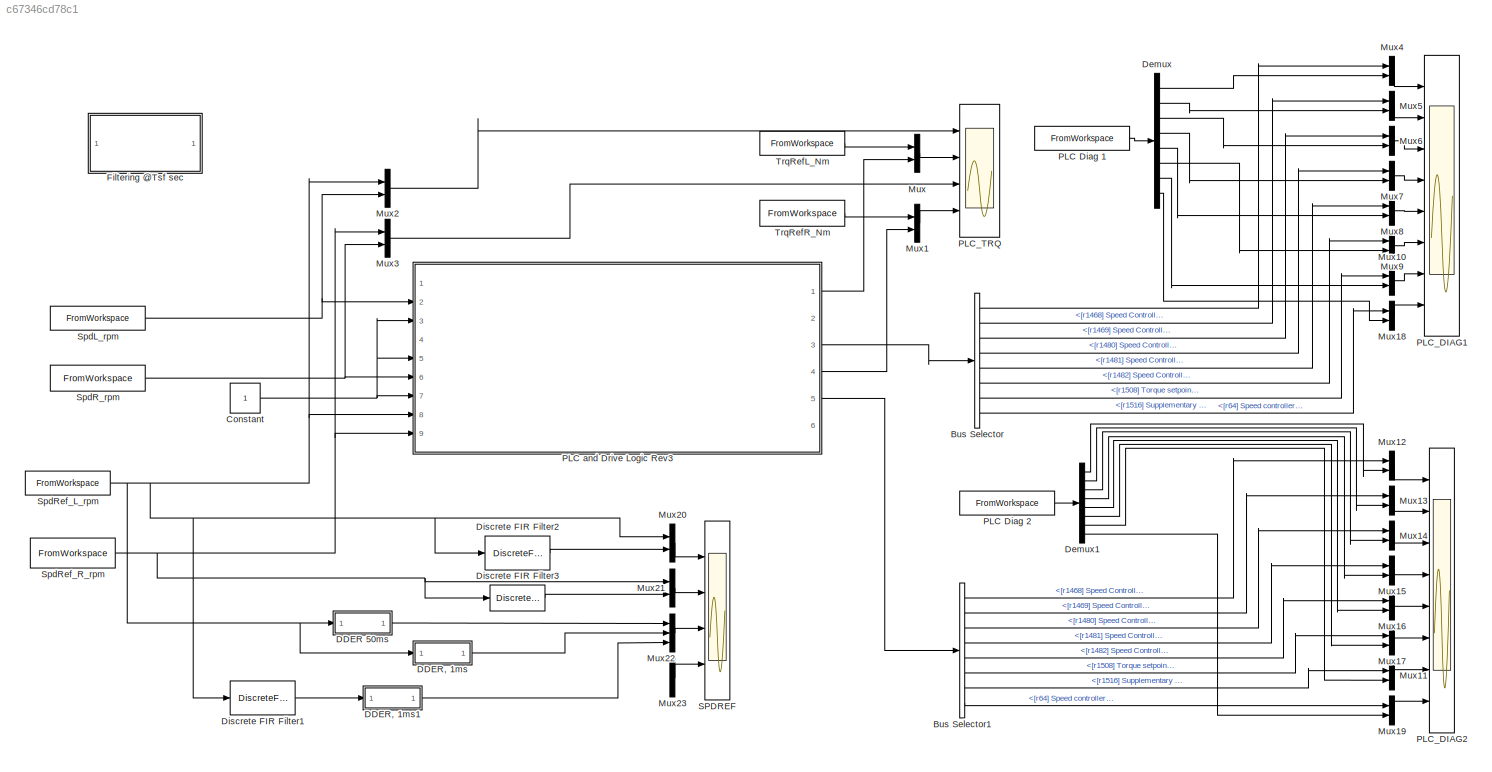
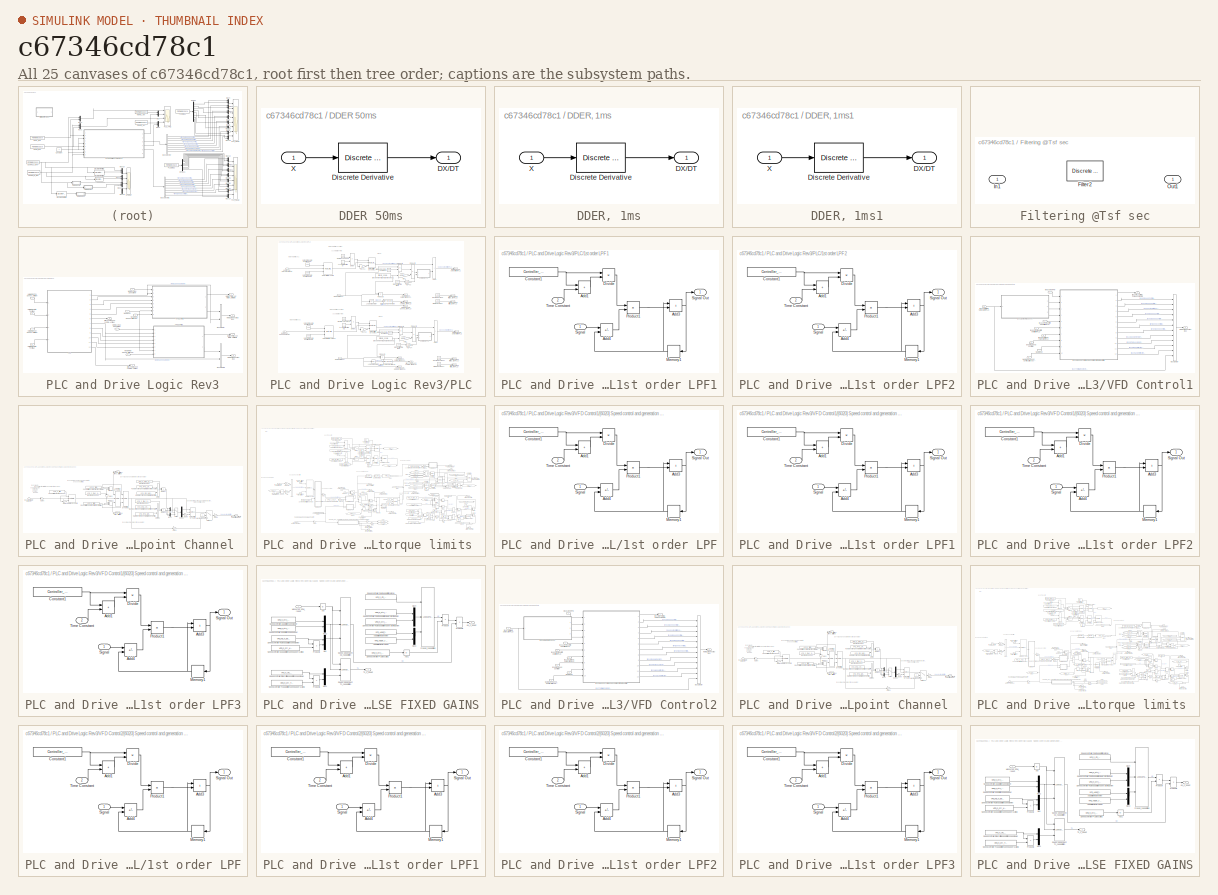
[diagram: thumbnail index - all 25 canvases of the model, root first then tree order]
MODEL slx_c67346cd78c1
KIND model
CONFIG AbsTol = auto
CONFIG EnableMultiTasking = off
CONFIG FixedStep = auto
CONFIG MaxStep = auto
CONFIG MinStep = auto
CONFIG RelTol = 1e-3
CONFIG SampleTimeConstraint = Unconstrained
CONFIG SolverName = VariableStepAuto
CONFIG StartTime = 0.0
CONFIG StopTime = t_stop
BLOCK [BusSelector] Bus Selector
  OutputSignals = signal1.[r1468] Speed Controller P-gain effective,signal1.[r1469] Speed Controller integral time effective,signal1.[r1480] Speed Controller PI torque Output,signal1.[r1481] Speed Controller P torque Output,signal1.[r1482] Speed Controller I torque Output,signal1.[r1508] Torque setpoint before supplementary torque,signal1.[r1516] Supplementary torque and acceleration torque,signal1.[r64] Speed cont...<+23ch>
  Ports = [1, 8]
BLOCK [BusSelector] Bus Selector1
  OutputSignals = signal1.[r1468] Speed Controller P-gain effective,signal1.[r1469] Speed Controller integral time effective,signal1.[r1480] Speed Controller PI torque Output,signal1.[r1481] Speed Controller P torque Output,signal1.[r1482] Speed Controller I torque Output,signal1.[r1508] Torque setpoint before supplementary torque,signal1.[r1516] Supplementary torque and acceleration torque,signal1.[r64] Speed cont...<+23ch>
  Ports = [1, 8]
BLOCK [Constant] Constant
BLOCK [SubSystem] DDER 50ms
  Ports = [1, 1]
  RequestExecContextInheritance = off
  SystemSampleTime = 0.05
  TreatAsAtomicUnit = on
BLOCK [Outport] DDER 50ms/DX//DT
BLOCK [Reference] DDER 50ms/Discrete Derivative  REF=simulink/Discrete/Discrete Derivative
  Ports = [1, 1]
  SourceBlock = simulink/Discrete/Discrete Derivative
  SourceProductBaseCode = SL
  SourceType = Discrete Derivative
BLOCK [Inport] DDER 50ms/X
BLOCK [SubSystem] DDER, 1ms
  Ports = [1, 1]
  RequestExecContextInheritance = off
  SystemSampleTime = 0.001
  TreatAsAtomicUnit = on
BLOCK [Outport] DDER, 1ms/DX//DT
BLOCK [Reference] DDER, 1ms/Discrete Derivative  REF=simulink/Discrete/Discrete Derivative
  Ports = [1, 1]
  SourceBlock = simulink/Discrete/Discrete Derivative
  SourceProductBaseCode = SL
  SourceType = Discrete Derivative
BLOCK [Inport] DDER, 1ms/X
BLOCK [SubSystem] DDER, 1ms1
  Ports = [1, 1]
  RequestExecContextInheritance = off
  SystemSampleTime = 0.001
  TreatAsAtomicUnit = on
BLOCK [Outport] DDER, 1ms1/DX//DT
BLOCK [Reference] DDER, 1ms1/Discrete Derivative  REF=simulink/Discrete/Discrete Derivative
  Ports = [1, 1]
  SourceBlock = simulink/Discrete/Discrete Derivative
  SourceProductBaseCode = SL
  SourceType = Discrete Derivative
BLOCK [Inport] DDER, 1ms1/X
BLOCK [Demux] Demux
  Outputs = 8
  Ports = [1, 8]
BLOCK [Demux] Demux1
  Outputs = 8
  Ports = [1, 8]
BLOCK [DiscreteFir] Discrete FIR Filter1
  Coefficients = filt_NUM
  InputPortMap = u0
  OutputPortMap = o0
  Ports = [1, 1]
  SampleTime = Controller_sampleTime
BLOCK [DiscreteFir] Discrete FIR Filter2
  Coefficients = filt_NUM
  InputPortMap = u0
  OutputPortMap = o0
  Ports = [1, 1]
  SampleTime = Controller_sampleTime
BLOCK [DiscreteFir] Discrete FIR Filter3
  Coefficients = filt_NUM
  InputPortMap = u0
  OutputPortMap = o0
  Ports = [1, 1]
  SampleTime = Controller_sampleTime
BLOCK [SubSystem] Filtering @Tsf sec
  Commented = on
  Ports = [1, 1]
  RequestExecContextInheritance = off
  SystemSampleTime = Tsf
  TreatAsAtomicUnit = on
BLOCK [Reference] Filtering @Tsf sec/Filter2  REF=simulink_extras/Additional
Discrete/Discrete
Transfer Fcn
(with initial outputs)
  Ports = [1, 1]
  SourceBlock = simulink_extras/Additional\nDiscrete/Discrete\nTransfer Fcn\n(with initial outputs)
  SourceProductBaseCode = SL
  SourceType = Discrete Transfer Function with Initial Outputs
BLOCK [Inport] Filtering @Tsf sec/In1
BLOCK [Outport] Filtering @Tsf sec/Out1
BLOCK [Mux] Mux
  DisplayOption = bar
  Inputs = 2
  Ports = [2, 1]
BLOCK [Mux] Mux1
  DisplayOption = bar
  Inputs = 2
  Ports = [2, 1]
BLOCK [Mux] Mux10
  DisplayOption = bar
  Inputs = 2
  Ports = [2, 1]
BLOCK [Mux] Mux11
  DisplayOption = bar
  Inputs = 2
  Ports = [2, 1]
BLOCK [Mux] Mux12
  DisplayOption = bar
  Inputs = 2
  Ports = [2, 1]
BLOCK [Mux] Mux13
  DisplayOption = bar
  Inputs = 2
  Ports = [2, 1]
BLOCK [Mux] Mux14
  DisplayOption = bar
  Inputs = 2
  Ports = [2, 1]
BLOCK [Mux] Mux15
  DisplayOption = bar
  Inputs = 2
  Ports = [2, 1]
BLOCK [Mux] Mux16
  DisplayOption = bar
  Inputs = 2
  Ports = [2, 1]
BLOCK [Mux] Mux17
  DisplayOption = bar
  Inputs = 2
  Ports = [2, 1]
BLOCK [Mux] Mux18
  DisplayOption = bar
  Inputs = 2
  Ports = [2, 1]
BLOCK [Mux] Mux19
  DisplayOption = bar
  Inputs = 2
  Ports = [2, 1]
BLOCK [Mux] Mux2
  DisplayOption = bar
  Inputs = 2
  Ports = [2, 1]
BLOCK [Mux] Mux20
  DisplayOption = bar
  Inputs = 2
  Ports = [2, 1]
BLOCK [Mux] Mux21
  DisplayOption = bar
  Inputs = 2
  Ports = [2, 1]
BLOCK [Mux] Mux22
  DisplayOption = bar
  Inputs = 3
  Ports = [3, 1]
BLOCK [Mux] Mux23
  DisplayOption = bar
  Inputs = 3
  Ports = [3, 1]
BLOCK [Mux] Mux3
  DisplayOption = bar
  Inputs = 2
  Ports = [2, 1]
BLOCK [Mux] Mux4
  DisplayOption = bar
  Inputs = 2
  Ports = [2, 1]
BLOCK [Mux] Mux5
  DisplayOption = bar
  Inputs = 2
  Ports = [2, 1]
BLOCK [Mux] Mux6
  DisplayOption = bar
  Inputs = 2
  Ports = [2, 1]
BLOCK [Mux] Mux7
  DisplayOption = bar
  Inputs = 2
  Ports = [2, 1]
BLOCK [Mux] Mux8
  DisplayOption = bar
  Inputs = 2
  Ports = [2, 1]
BLOCK [Mux] Mux9
  DisplayOption = bar
  Inputs = 2
  Ports = [2, 1]
BLOCK [FromWorkspace] PLC Diag 1
  OutputAfterFinalValue = Holding final value
  VariableName = PLCDIAG1_inp
BLOCK [FromWorkspace] PLC Diag 2
  OutputAfterFinalValue = Holding final value
  VariableName = PLCDIAG2_inp
BLOCK [SubSystem] PLC and Drive Logic Rev3
  AncestorBlock = Control_Library_Rev3/PLC and Drive Logic
  Ports = [9, 6]
  RequestExecContextInheritance = off
BLOCK [BusCreator] PLC and Drive Logic Rev3/Bus Creator
  DisplayOption = bar
  InheritFromInputs = on
  Inputs = 2
  Ports = [2, 1]
BLOCK [BusCreator] PLC and Drive Logic Rev3/Bus Creator1
  DisplayOption = bar
  InheritFromInputs = on
  Inputs = 2
  Ports = [2, 1]
BLOCK [Inport] PLC and Drive Logic Rev3/HMI Motor 1 CSV Speed Setpoint (rpm)
BLOCK [Inport] PLC and Drive Logic Rev3/HMI Motor 1 Start Test [0...1]
  Port = 3
BLOCK [Inport] PLC and Drive Logic Rev3/HMI Motor 2 CSV Speed Setpoint (rpm)
  Port = 4
BLOCK [Inport] PLC and Drive Logic Rev3/HMI Motor 2 Start Test [0...1]
  Port = 5
BLOCK [Outport] PLC and Drive Logic Rev3/M1 [r0079] M_set total (Torque setpoint [Nm])
BLOCK [Outport] PLC and Drive Logic Rev3/M2 [r0079] M_set total (Torque setpoint [Nm])
  Port = 4
BLOCK [Inport] PLC and Drive Logic Rev3/Motor 1 Actual Speed (rpm)
  Port = 2
BLOCK [Outport] PLC and Drive Logic Rev3/Motor 1 Diagnostics Bus
  Port = 3
BLOCK [Inport] PLC and Drive Logic Rev3/Motor 2 Actual Speed (rpm)
  Port = 6
BLOCK [Outport] PLC and Drive Logic Rev3/Motor 2 Diagnostics Bus
  Port = 5
BLOCK [SubSystem] PLC and Drive Logic Rev3/PLC
  Ports = [4, 12]
  RequestExecContextInheritance = off
  SystemSampleTime = Controller_sampleTime
  TreatAsAtomicUnit = on
BLOCK [SubSystem] PLC and Drive Logic Rev3/PLC/1st order LPF1
  Ports = [2, 1]
  RequestExecContextInheritance = off
BLOCK [Sum] PLC and Drive Logic Rev3/PLC/1st order LPF1/Add1
  IconShape = rectangular
  Ports = [2, 1]
BLOCK [Sum] PLC and Drive Logic Rev3/PLC/1st order LPF1/Add3
  IconShape = rectangular
  Ports = [2, 1]
BLOCK [Sum] PLC and Drive Logic Rev3/PLC/1st order LPF1/Add4
  IconShape = rectangular
  Inputs = +-
  Ports = [2, 1]
BLOCK [Constant] PLC and Drive Logic Rev3/PLC/1st order LPF1/Constant1
  Value = Controller_sampleTime
BLOCK [Product] PLC and Drive Logic Rev3/PLC/1st order LPF1/Divide
  Inputs = */
  Ports = [2, 1]
BLOCK [Memory] PLC and Drive Logic Rev3/PLC/1st order LPF1/Memory1
  InheritSampleTime = on
  InitialCondition = Yo
BLOCK [Product] PLC and Drive Logic Rev3/PLC/1st order LPF1/Product1
  Ports = [2, 1]
  RndMeth = Zero
BLOCK [Inport] PLC and Drive Logic Rev3/PLC/1st order LPF1/Signal
BLOCK [Outport] PLC and Drive Logic Rev3/PLC/1st order LPF1/Signal Out
  VectorParamsAs1DForOutWhenUnconnected = off
BLOCK [Inport] PLC and Drive Logic Rev3/PLC/1st order LPF1/Time Constant
  Port = 2
BLOCK [SubSystem] PLC and Drive Logic Rev3/PLC/1st order LPF2
  Ports = [2, 1]
  RequestExecContextInheritance = off
BLOCK [Sum] PLC and Drive Logic Rev3/PLC/1st order LPF2/Add1
  IconShape = rectangular
  Ports = [2, 1]
BLOCK [Sum] PLC and Drive Logic Rev3/PLC/1st order LPF2/Add3
  IconShape = rectangular
  Ports = [2, 1]
BLOCK [Sum] PLC and Drive Logic Rev3/PLC/1st order LPF2/Add4
  IconShape = rectangular
  Inputs = +-
  Ports = [2, 1]
BLOCK [Constant] PLC and Drive Logic Rev3/PLC/1st order LPF2/Constant1
  Value = Controller_sampleTime
BLOCK [Product] PLC and Drive Logic Rev3/PLC/1st order LPF2/Divide
  Inputs = */
  Ports = [2, 1]
BLOCK [Memory] PLC and Drive Logic Rev3/PLC/1st order LPF2/Memory1
  InheritSampleTime = on
  InitialCondition = Yo
BLOCK [Product] PLC and Drive Logic Rev3/PLC/1st order LPF2/Product1
  Ports = [2, 1]
  RndMeth = Zero
BLOCK [Inport] PLC and Drive Logic Rev3/PLC/1st order LPF2/Signal
BLOCK [Outport] PLC and Drive Logic Rev3/PLC/1st order LPF2/Signal Out
  VectorParamsAs1DForOutWhenUnconnected = off
BLOCK [Inport] PLC and Drive Logic Rev3/PLC/1st order LPF2/Time Constant
  Port = 2
BLOCK [Constant] PLC and Drive Logic Rev3/PLC/Acceleration time (s)
BLOCK [Constant] PLC and Drive Logic Rev3/PLC/Acceleration time (s)1
BLOCK [Sum] PLC and Drive Logic Rev3/PLC/Add1
  IconShape = rectangular
  Ports = [2, 1]
BLOCK [Sum] PLC and Drive Logic Rev3/PLC/Add2
  IconShape = rectangular
  Ports = [2, 1]
BLOCK [DataTypeConversion] PLC and Drive Logic Rev3/PLC/Data Type Conversion
  OutDataTypeStr = double
  RndMeth = Floor
  SaturateOnIntegerOverflow = off
BLOCK [DataTypeConversion] PLC and Drive Logic Rev3/PLC/Data Type Conversion1
  OutDataTypeStr = double
  RndMeth = Floor
  SaturateOnIntegerOverflow = off
BLOCK [Product] PLC and Drive Logic Rev3/PLC/Divide
  Inputs = */
  Ports = [2, 1]
BLOCK [Product] PLC and Drive Logic Rev3/PLC/Divide1
  Inputs = */
  Ports = [2, 1]
BLOCK [Constant] PLC and Drive Logic Rev3/PLC/Droop Filter Time (ms)1
  Value = 100
BLOCK [Constant] PLC and Drive Logic Rev3/PLC/Droop Filter Time (ms)2
  Value = 100
BLOCK [Constant] PLC and Drive Logic Rev3/PLC/Droop percentage at zero speed1
  Value = Droop_scaling
BLOCK [Constant] PLC and Drive Logic Rev3/PLC/Droop percentage at zero speed2
  Value = Droop_scaling
BLOCK [Logic] PLC and Drive Logic Rev3/PLC/Logical Operator
  AllPortsSameDT = off
  Operator = NOT
  OutDataTypeStr = boolean
  Ports = [1, 1]
BLOCK [Logic] PLC and Drive Logic Rev3/PLC/Logical Operator1
  AllPortsSameDT = off
  Operator = NOT
  OutDataTypeStr = boolean
  Ports = [1, 1]
BLOCK [Constant] PLC and Drive Logic Rev3/PLC/Maximum Torque
  Value = 1353
BLOCK [Constant] PLC and Drive Logic Rev3/PLC/Maximum Torque1
  Value = 1353
BLOCK [Constant] PLC and Drive Logic Rev3/PLC/Minimum Torque
  Value = -1353
BLOCK [Constant] PLC and Drive Logic Rev3/PLC/Minimum Torque1
  Value = -1353
BLOCK [Constant] PLC and Drive Logic Rev3/PLC/Minimum memorised Torque1
  Value = 863.6
BLOCK [Constant] PLC and Drive Logic Rev3/PLC/Minimum memorised Torque2
  Value = 863.6
BLOCK [Inport] PLC and Drive Logic Rev3/PLC/Motor 1 CSV Speed Setpoint
BLOCK [Outport] PLC and Drive Logic Rev3/PLC/Motor 1 Droop Parameter (from PLC)
  Port = 4
BLOCK [Outport] PLC and Drive Logic Rev3/PLC/Motor 1 Enable Speed Setpoint (from PLC)
  Port = 5
BLOCK [Outport] PLC and Drive Logic Rev3/PLC/Motor 1 Speed Setpoint from PLC
BLOCK [Inport] PLC and Drive Logic Rev3/PLC/Motor 1 Start Test
  Port = 2
BLOCK [Outport] PLC and Drive Logic Rev3/PLC/Motor 1 Torque limit lower (from PLC)
  Port = 3
BLOCK [Outport] PLC and Drive Logic Rev3/PLC/Motor 1 Torque limit upper (from PLC)
  Port = 2
BLOCK [Inport] PLC and Drive Logic Rev3/PLC/Motor 2 CSV Speed Setpoint
  Port = 3
BLOCK [Outport] PLC and Drive Logic Rev3/PLC/Motor 2 Droop Parameter (from PLC)
  Port = 10
BLOCK [Outport] PLC and Drive Logic Rev3/PLC/Motor 2 Enable Speed Setpoint (from PLC)
  Port = 11
BLOCK [Outport] PLC and Drive Logic Rev3/PLC/Motor 2 Speed Setpoint from PLC
  Port = 7
BLOCK [Inport] PLC and Drive Logic Rev3/PLC/Motor 2 Start Test
  Port = 4
BLOCK [Outport] PLC and Drive Logic Rev3/PLC/Motor 2 Torque limit lower (from PLC)
  Port = 9
BLOCK [Outport] PLC and Drive Logic Rev3/PLC/Motor 2 Torque limit upper (from PLC)
  Port = 8
BLOCK [Product] PLC and Drive Logic Rev3/PLC/Product1
  Inputs = **
  Ports = [2, 1]
BLOCK [Product] PLC and Drive Logic Rev3/PLC/Product2
  Inputs = **
  Ports = [2, 1]
BLOCK [Product] PLC and Drive Logic Rev3/PLC/Product3
  Ports = [2, 1]
BLOCK [Product] PLC and Drive Logic Rev3/PLC/Product4
  Ports = [2, 1]
BLOCK [Product] PLC and Drive Logic Rev3/PLC/Product5
  Inputs = **
  Ports = [2, 1]
BLOCK [Product] PLC and Drive Logic Rev3/PLC/Product6
  Inputs = **
  Ports = [2, 1]
BLOCK [Reference] PLC and Drive Logic Rev3/PLC/Rate Limiter Dynamic  REF=simulink/Discontinuities/Rate Limiter
Dynamic
  NameLocation = top
  Ports = [3, 1]
  SourceBlock = simulink/Discontinuities/Rate Limiter\nDynamic
  SourceProductBaseCode = SL
  SourceType = Rate Limiter Dynamic
BLOCK [Reference] PLC and Drive Logic Rev3/PLC/Rate Limiter Dynamic1  REF=simulink/Discontinuities/Rate Limiter
Dynamic
  Ports = [3, 1]
  SourceBlock = simulink/Discontinuities/Rate Limiter\nDynamic
  SourceProductBaseCode = SL
  SourceType = Rate Limiter Dynamic
BLOCK [Reference] PLC and Drive Logic Rev3/PLC/Rate Limiter Dynamic2  REF=simulink/Discontinuities/Rate Limiter
Dynamic
  NameLocation = top
  Ports = [3, 1]
  SourceBlock = simulink/Discontinuities/Rate Limiter\nDynamic
  SourceProductBaseCode = SL
  SourceType = Rate Limiter Dynamic
BLOCK [Reference] PLC and Drive Logic Rev3/PLC/Rate Limiter Dynamic3  REF=simulink/Discontinuities/Rate Limiter
Dynamic
  Ports = [3, 1]
  SourceBlock = simulink/Discontinuities/Rate Limiter\nDynamic
  SourceProductBaseCode = SL
  SourceType = Rate Limiter Dynamic
BLOCK [Constant] PLC and Drive Logic Rev3/PLC/Reference speed
  Value = 1680
BLOCK [Constant] PLC and Drive Logic Rev3/PLC/Reference speed1
  Value = 1680
BLOCK [Constant] PLC and Drive Logic Rev3/PLC/Setpoint max rate positive (sp//s)
  Value = 3000
BLOCK [Constant] PLC and Drive Logic Rev3/PLC/Setpoint max rate positive (sp//s)1
  Value = -3000
BLOCK [Constant] PLC and Drive Logic Rev3/PLC/Setpoint max rate positive (sp//s)2
  Value = 3000
BLOCK [Constant] PLC and Drive Logic Rev3/PLC/Setpoint max rate positive (sp//s)3
  Value = -3000
BLOCK [Outport] PLC and Drive Logic Rev3/PLC/Winch 1 Brake on command (from PLC)
  Port = 6
BLOCK [Outport] PLC and Drive Logic Rev3/PLC/Winch 2 Brake on command (from PLC)
  Port = 12
BLOCK [Gain] PLC and Drive Logic Rev3/PLC/ms->s1
  Gain = -1
BLOCK [Gain] PLC and Drive Logic Rev3/PLC/ms->s2
  Gain = -1
BLOCK [Gain] PLC and Drive Logic Rev3/PLC/ms->s3
  Gain = 1e-3
BLOCK [Gain] PLC and Drive Logic Rev3/PLC/ms->s4
  Gain = 1e-3
BLOCK [Gain] PLC and Drive Logic Rev3/PLC/n//M1
  Gain = 4.63/2.52982
BLOCK [Gain] PLC and Drive Logic Rev3/PLC/n//M2
  Gain = 4.63/2.52982
BLOCK [SubSystem] PLC and Drive Logic Rev3/VFD Control1
  AncestorBlock = Control_Library_Rev3/VFD Control
  Ports = [8, 2]
  RequestExecContextInheritance = off
  SystemSampleTime = Controller_sampleTime
  TreatAsAtomicUnit = on
BLOCK [BusCreator] PLC and Drive Logic Rev3/VFD Control1/Bus Creator
  DisplayOption = bar
  InheritFromInputs = on
  Inputs = 12
  Ports = [12, 1]
BLOCK [Inport] PLC and Drive Logic Rev3/VFD Control1/Enable Speed Controller
  Port = 6
BLOCK [Inport] PLC and Drive Logic Rev3/VFD Control1/Measured RPM
  NameLocation = top
BLOCK [Outport] PLC and Drive Logic Rev3/VFD Control1/Motor 1 Diagnostics Bus
  Port = 2
BLOCK [Inport] PLC and Drive Logic Rev3/VFD Control1/WAB Mode
  Port = 7
BLOCK [Inport] PLC and Drive Logic Rev3/VFD Control1/WAB Mode Speed_Controller Setpoint (r1438)
  Port = 8
BLOCK [SubSystem] PLC and Drive Logic Rev3/VFD Control1/[3001] Setpoint Channel 
  Ports = [1, 3]
  RequestExecContextInheritance = off
BLOCK [Demux] PLC and Drive Logic Rev3/VFD Control1/[3001] Setpoint Channel /Demux
  Outputs = 2
  Ports = [1, 2]
BLOCK [Product] PLC and Drive Logic Rev3/VFD Control1/[3001] Setpoint Channel /Divide
  Inputs = **
  Ports = [2, 1]
BLOCK [Product] PLC and Drive Logic Rev3/VFD Control1/[3001] Setpoint Channel /Divide1
  Inputs = */
  Ports = [2, 1]
BLOCK [Product] PLC and Drive Logic Rev3/VFD Control1/[3001] Setpoint Channel /Divide2
  Inputs = **
  Ports = [2, 1]
BLOCK [Product] PLC and Drive Logic Rev3/VFD Control1/[3001] Setpoint Channel /Divide3
  Inputs = */
  Ports = [2, 1]
BLOCK [Gain] PLC and Drive Logic Rev3/VFD Control1/[3001] Setpoint Channel /Gain1
  Gain = -1
BLOCK [Gain] PLC and Drive Logic Rev3/VFD Control1/[3001] Setpoint Channel /Gain2
  Gain = -1
  NameLocation = left
BLOCK [Gain] PLC and Drive Logic Rev3/VFD Control1/[3001] Setpoint Channel /Gain3
BLOCK [Gain] PLC and Drive Logic Rev3/VFD Control1/[3001] Setpoint Channel /Gain4
BLOCK [Gain] PLC and Drive Logic Rev3/VFD Control1/[3001] Setpoint Channel /Gain5
BLOCK [Gain] PLC and Drive Logic Rev3/VFD Control1/[3001] Setpoint Channel /Gain6
  Gain = -1
BLOCK [Constant] PLC and Drive Logic Rev3/VFD Control1/[3001] Setpoint Channel /Maximum speed
  Value = VFD_n_max_p1082
BLOCK [Constant] PLC and Drive Logic Rev3/VFD Control1/[3001] Setpoint Channel /Maximum speed1
  Value = VFD_n_max_p1082
BLOCK [Constant] PLC and Drive Logic Rev3/VFD Control1/[3001] Setpoint Channel /Maximum speed2
BLOCK [Constant] PLC and Drive Logic Rev3/VFD Control1/[3001] Setpoint Channel /Maximum speed3
  Value = VFD_n_max_p1082
BLOCK [MinMax] PLC and Drive Logic Rev3/VFD Control1/[3001] Setpoint Channel /MinMax
  Inputs = 3
  Ports = [3, 1]
BLOCK [MinMax] PLC and Drive Logic Rev3/VFD Control1/[3001] Setpoint Channel /MinMax1
  Function = max
  Inputs = 3
  Ports = [3, 1]
BLOCK [Mux] PLC and Drive Logic Rev3/VFD Control1/[3001] Setpoint Channel /Mux
  DisplayOption = bar
  Inputs = 2
  Ports = [2, 1]
BLOCK [Mux] PLC and Drive Logic Rev3/VFD Control1/[3001] Setpoint Channel /Mux1
  DisplayOption = bar
  Inputs = 2
  Ports = [2, 1]
BLOCK [Constant] PLC and Drive Logic Rev3/VFD Control1/[3001] Setpoint Channel /Ramp-function generator ramp-down time
  Value = VFD_RFG_ramp_down_time_p1121
BLOCK [Constant] PLC and Drive Logic Rev3/VFD Control1/[3001] Setpoint Channel /Ramp-function generator ramp-down time scaling
  Value = VFD_RFG_t_RD_scal_p1139
  VectorParams1D = off
BLOCK [Constant] PLC and Drive Logic Rev3/VFD Control1/[3001] Setpoint Channel /Ramp-function generator ramp-up time 
  Value = VFD_RFG_ramp_up_time_p1120
BLOCK [Constant] PLC and Drive Logic Rev3/VFD Control1/[3001] Setpoint Channel /Ramp-function generator ramp-up time scaling 
  Value = VFD_RFG_t_RU_scal_p1138
BLOCK [Reference] PLC and Drive Logic Rev3/VFD Control1/[3001] Setpoint Channel /Rate Limiter Dynamic  REF=simulink/Discontinuities/Rate Limiter
Dynamic
  Ports = [3, 1]
  SourceBlock = simulink/Discontinuities/Rate Limiter\nDynamic
  SourceProductBaseCode = SL
  SourceType = Rate Limiter Dynamic
BLOCK [Reference] PLC and Drive Logic Rev3/VFD Control1/[3001] Setpoint Channel /Saturation Dynamic  REF=simulink/Discontinuities/Saturation
Dynamic
  Ports = [3, 1]
  SourceBlock = simulink/Discontinuities/Saturation\nDynamic
  SourceProductBaseCode = SL
  SourceType = Saturation Dynamic
BLOCK [Reference] PLC and Drive Logic Rev3/VFD Control1/[3001] Setpoint Channel /Saturation Dynamic1  REF=simulink/Discontinuities/Saturation
Dynamic
  Ports = [3, 1]
  SourceBlock = simulink/Discontinuities/Saturation\nDynamic
  SourceProductBaseCode = SL
  SourceType = Saturation Dynamic
BLOCK [Reference] PLC and Drive Logic Rev3/VFD Control1/[3001] Setpoint Channel /Saturation Dynamic2  REF=simulink/Discontinuities/Saturation
Dynamic
  Ports = [3, 1]
  SourceBlock = simulink/Discontinuities/Saturation\nDynamic
  SourceProductBaseCode = SL
  SourceType = Saturation Dynamic
BLOCK [Constant] PLC and Drive Logic Rev3/VFD Control1/[3001] Setpoint Channel /Speed limit in negative direction of rotation 
  Value = VFD_n_limit_neg_p1086
BLOCK [Constant] PLC and Drive Logic Rev3/VFD Control1/[3001] Setpoint Channel /Speed limit in positive direction of rotation
  Value = VFD_n_limit_pos_p1083
BLOCK [Constant] PLC and Drive Logic Rev3/VFD Control1/[3001] Setpoint Channel /Speed limit setpoint channel
  Value = VFD_n_limit_setp_p1063
BLOCK [Switch] PLC and Drive Logic Rev3/VFD Control1/[3001] Setpoint Channel /Switch
  Criteria = u2 > Threshold
  InputSameDT = off
  SaturateOnIntegerOverflow = off
BLOCK [Switch] PLC and Drive Logic Rev3/VFD Control1/[3001] Setpoint Channel /Switch1
  Criteria = u2 > Threshold
  InputSameDT = off
  SaturateOnIntegerOverflow = off
BLOCK [Inport] PLC and Drive Logic Rev3/VFD Control1/[3001] Setpoint Channel /[p1070(0)] Main Setpoint
BLOCK [Outport] PLC and Drive Logic Rev3/VFD Control1/[3001] Setpoint Channel /[r1084] n_limit pos eff Positive Speed limit (rpm)
  NameLocation = top
  Port = 2
  VectorParamsAs1DForOutWhenUnconnected = off
BLOCK [Outport] PLC and Drive Logic Rev3/VFD Control1/[3001] Setpoint Channel /[r1087] n_limit neg eff Negative Speed limit (rpm)
  Port = 3
  VectorParamsAs1DForOutWhenUnconnected = off
BLOCK [Outport] PLC and Drive Logic Rev3/VFD Control1/[3001] Setpoint Channel /[r1170] n_ctrl setp sum (Speed setpoint after the RFG)
  VectorParamsAs1DForOutWhenUnconnected = off
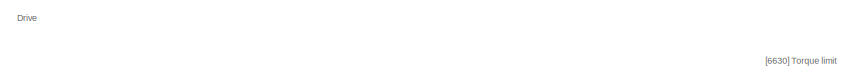
[diagram: PLC and Drive Logic Rev3/VFD Control1/[6020] Speed control and generation of the torque limits  - part 1/3, top left region]
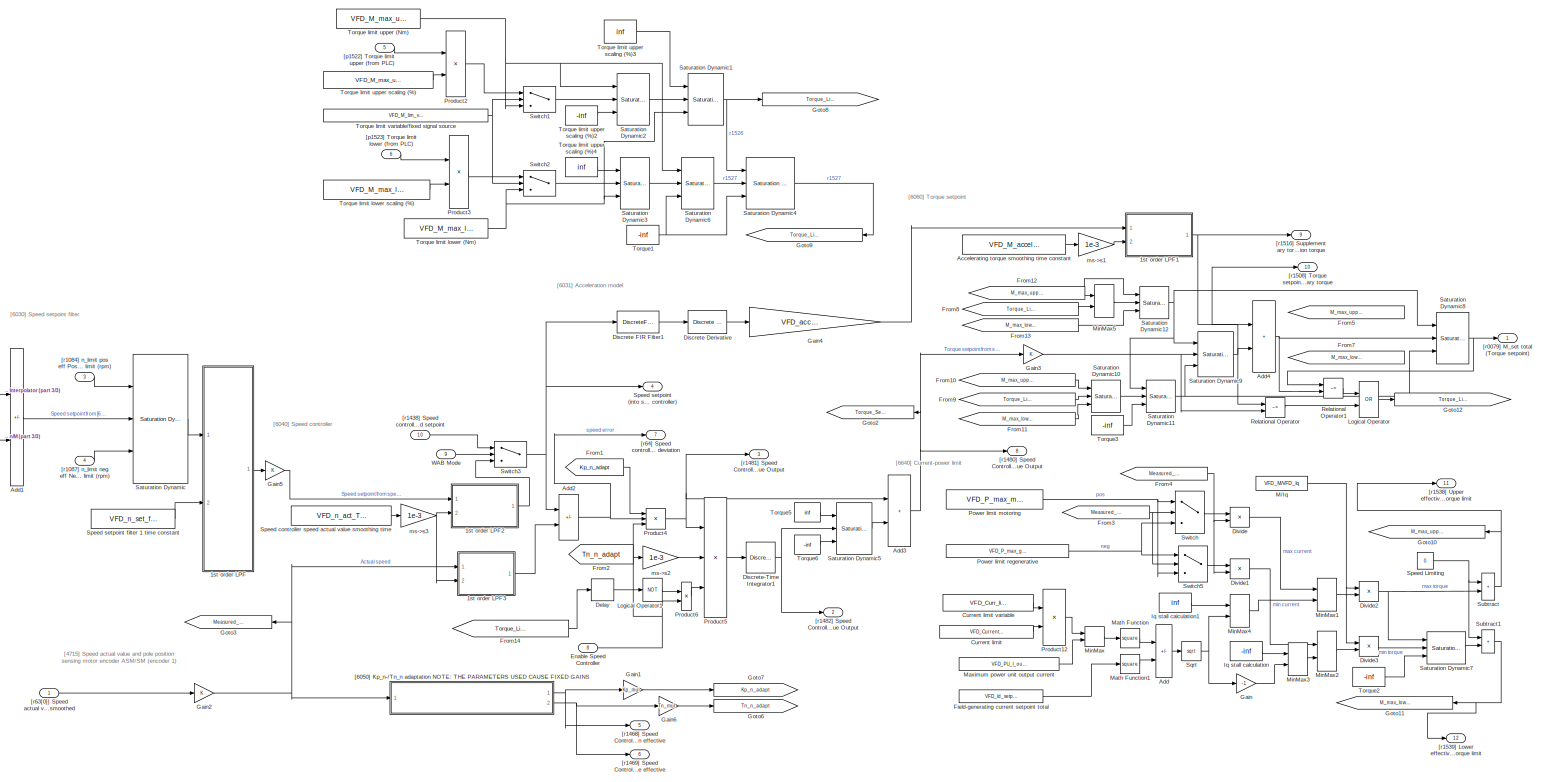
[diagram: PLC and Drive Logic Rev3/VFD Control1/[6020] Speed control and generation of the torque limits  - part 2/3, most of the canvas]
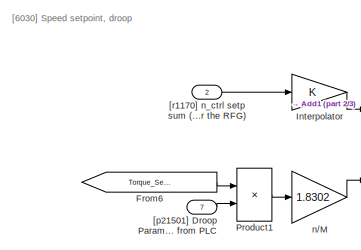
[diagram: PLC and Drive Logic Rev3/VFD Control1/[6020] Speed control and generation of the torque limits  - part 3/3, middle left region]
BLOCK [SubSystem] PLC and Drive Logic Rev3/VFD Control1/[6020] Speed control and generation of the torque limits 
  Ports = [10, 12]
  RequestExecContextInheritance = off
BLOCK [SubSystem] PLC and Drive Logic Rev3/VFD Control1/[6020] Speed control and generation of the torque limits /1st order LPF
  Ports = [2, 1]
  RequestExecContextInheritance = off
BLOCK [Sum] PLC and Drive Logic Rev3/VFD Control1/[6020] Speed control and generation of the torque limits /1st order LPF/Add1
  IconShape = rectangular
  Ports = [2, 1]
BLOCK [Sum] PLC and Drive Logic Rev3/VFD Control1/[6020] Speed control and generation of the torque limits /1st order LPF/Add3
  IconShape = rectangular
  Ports = [2, 1]
BLOCK [Sum] PLC and Drive Logic Rev3/VFD Control1/[6020] Speed control and generation of the torque limits /1st order LPF/Add4
  IconShape = rectangular
  Inputs = +-
  Ports = [2, 1]
BLOCK [Constant] PLC and Drive Logic Rev3/VFD Control1/[6020] Speed control and generation of the torque limits /1st order LPF/Constant1
  Value = Controller_sampleTime
BLOCK [Product] PLC and Drive Logic Rev3/VFD Control1/[6020] Speed control and generation of the torque limits /1st order LPF/Divide
  Inputs = */
  Ports = [2, 1]
BLOCK [Memory] PLC and Drive Logic Rev3/VFD Control1/[6020] Speed control and generation of the torque limits /1st order LPF/Memory1
  InheritSampleTime = on
  InitialCondition = Yo
BLOCK [Product] PLC and Drive Logic Rev3/VFD Control1/[6020] Speed control and generation of the torque limits /1st order LPF/Product1
  Ports = [2, 1]
  RndMeth = Zero
BLOCK [Inport] PLC and Drive Logic Rev3/VFD Control1/[6020] Speed control and generation of the torque limits /1st order LPF/Signal
BLOCK [Outport] PLC and Drive Logic Rev3/VFD Control1/[6020] Speed control and generation of the torque limits /1st order LPF/Signal Out
  VectorParamsAs1DForOutWhenUnconnected = off
BLOCK [Inport] PLC and Drive Logic Rev3/VFD Control1/[6020] Speed control and generation of the torque limits /1st order LPF/Time Constant
  Port = 2
BLOCK [SubSystem] PLC and Drive Logic Rev3/VFD Control1/[6020] Speed control and generation of the torque limits /1st order LPF1
  Ports = [2, 1]
  RequestExecContextInheritance = off
BLOCK [Sum] PLC and Drive Logic Rev3/VFD Control1/[6020] Speed control and generation of the torque limits /1st order LPF1/Add1
  IconShape = rectangular
  Ports = [2, 1]
BLOCK [Sum] PLC and Drive Logic Rev3/VFD Control1/[6020] Speed control and generation of the torque limits /1st order LPF1/Add3
  IconShape = rectangular
  Ports = [2, 1]
BLOCK [Sum] PLC and Drive Logic Rev3/VFD Control1/[6020] Speed control and generation of the torque limits /1st order LPF1/Add4
  IconShape = rectangular
  Inputs = +-
  Ports = [2, 1]
BLOCK [Constant] PLC and Drive Logic Rev3/VFD Control1/[6020] Speed control and generation of the torque limits /1st order LPF1/Constant1
  Value = Controller_sampleTime
BLOCK [Product] PLC and Drive Logic Rev3/VFD Control1/[6020] Speed control and generation of the torque limits /1st order LPF1/Divide
  Inputs = */
  Ports = [2, 1]
BLOCK [Memory] PLC and Drive Logic Rev3/VFD Control1/[6020] Speed control and generation of the torque limits /1st order LPF1/Memory1
  InheritSampleTime = on
  InitialCondition = Yo
BLOCK [Product] PLC and Drive Logic Rev3/VFD Control1/[6020] Speed control and generation of the torque limits /1st order LPF1/Product1
  Ports = [2, 1]
  RndMeth = Zero
BLOCK [Inport] PLC and Drive Logic Rev3/VFD Control1/[6020] Speed control and generation of the torque limits /1st order LPF1/Signal
BLOCK [Outport] PLC and Drive Logic Rev3/VFD Control1/[6020] Speed control and generation of the torque limits /1st order LPF1/Signal Out
  VectorParamsAs1DForOutWhenUnconnected = off
BLOCK [Inport] PLC and Drive Logic Rev3/VFD Control1/[6020] Speed control and generation of the torque limits /1st order LPF1/Time Constant
  Port = 2
BLOCK [SubSystem] PLC and Drive Logic Rev3/VFD Control1/[6020] Speed control and generation of the torque limits /1st order LPF2
  Ports = [2, 1]
  RequestExecContextInheritance = off
BLOCK [Sum] PLC and Drive Logic Rev3/VFD Control1/[6020] Speed control and generation of the torque limits /1st order LPF2/Add1
  IconShape = rectangular
  Ports = [2, 1]
BLOCK [Sum] PLC and Drive Logic Rev3/VFD Control1/[6020] Speed control and generation of the torque limits /1st order LPF2/Add3
  IconShape = rectangular
  Ports = [2, 1]
BLOCK [Sum] PLC and Drive Logic Rev3/VFD Control1/[6020] Speed control and generation of the torque limits /1st order LPF2/Add4
  IconShape = rectangular
  Inputs = +-
  Ports = [2, 1]
BLOCK [Constant] PLC and Drive Logic Rev3/VFD Control1/[6020] Speed control and generation of the torque limits /1st order LPF2/Constant1
  Value = Controller_sampleTime
BLOCK [Product] PLC and Drive Logic Rev3/VFD Control1/[6020] Speed control and generation of the torque limits /1st order LPF2/Divide
  Inputs = */
  Ports = [2, 1]
BLOCK [Memory] PLC and Drive Logic Rev3/VFD Control1/[6020] Speed control and generation of the torque limits /1st order LPF2/Memory1
  InheritSampleTime = on
  InitialCondition = Yo
BLOCK [Product] PLC and Drive Logic Rev3/VFD Control1/[6020] Speed control and generation of the torque limits /1st order LPF2/Product1
  Ports = [2, 1]
  RndMeth = Zero
BLOCK [Inport] PLC and Drive Logic Rev3/VFD Control1/[6020] Speed control and generation of the torque limits /1st order LPF2/Signal
BLOCK [Outport] PLC and Drive Logic Rev3/VFD Control1/[6020] Speed control and generation of the torque limits /1st order LPF2/Signal Out
  VectorParamsAs1DForOutWhenUnconnected = off
BLOCK [Inport] PLC and Drive Logic Rev3/VFD Control1/[6020] Speed control and generation of the torque limits /1st order LPF2/Time Constant
  Port = 2
BLOCK [SubSystem] PLC and Drive Logic Rev3/VFD Control1/[6020] Speed control and generation of the torque limits /1st order LPF3
  Ports = [2, 1]
  RequestExecContextInheritance = off
BLOCK [Sum] PLC and Drive Logic Rev3/VFD Control1/[6020] Speed control and generation of the torque limits /1st order LPF3/Add1
  IconShape = rectangular
  Ports = [2, 1]
BLOCK [Sum] PLC and Drive Logic Rev3/VFD Control1/[6020] Speed control and generation of the torque limits /1st order LPF3/Add3
  IconShape = rectangular
  Ports = [2, 1]
BLOCK [Sum] PLC and Drive Logic Rev3/VFD Control1/[6020] Speed control and generation of the torque limits /1st order LPF3/Add4
  IconShape = rectangular
  Inputs = +-
  Ports = [2, 1]
BLOCK [Constant] PLC and Drive Logic Rev3/VFD Control1/[6020] Speed control and generation of the torque limits /1st order LPF3/Constant1
  Value = Controller_sampleTime
BLOCK [Product] PLC and Drive Logic Rev3/VFD Control1/[6020] Speed control and generation of the torque limits /1st order LPF3/Divide
  Inputs = */
  Ports = [2, 1]
BLOCK [Memory] PLC and Drive Logic Rev3/VFD Control1/[6020] Speed control and generation of the torque limits /1st order LPF3/Memory1
  InheritSampleTime = on
  InitialCondition = Yo
BLOCK [Product] PLC and Drive Logic Rev3/VFD Control1/[6020] Speed control and generation of the torque limits /1st order LPF3/Product1
  Ports = [2, 1]
  RndMeth = Zero
BLOCK [Inport] PLC and Drive Logic Rev3/VFD Control1/[6020] Speed control and generation of the torque limits /1st order LPF3/Signal
BLOCK [Outport] PLC and Drive Logic Rev3/VFD Control1/[6020] Speed control and generation of the torque limits /1st order LPF3/Signal Out
  VectorParamsAs1DForOutWhenUnconnected = off
BLOCK [Inport] PLC and Drive Logic Rev3/VFD Control1/[6020] Speed control and generation of the torque limits /1st order LPF3/Time Constant
  Port = 2
BLOCK [Constant] PLC and Drive Logic Rev3/VFD Control1/[6020] Speed control and generation of the torque limits /Accelerating torque smoothing time constant
  Value = VFD_M_accel_T_smooth_p1517
BLOCK [Sum] PLC and Drive Logic Rev3/VFD Control1/[6020] Speed control and generation of the torque limits /Add
  IconShape = rectangular
  Inputs = +-
  Ports = [2, 1]
BLOCK [Sum] PLC and Drive Logic Rev3/VFD Control1/[6020] Speed control and generation of the torque limits /Add1
  IconShape = rectangular
  Inputs = +-
  Ports = [2, 1]
BLOCK [Sum] PLC and Drive Logic Rev3/VFD Control1/[6020] Speed control and generation of the torque limits /Add2
  IconShape = rectangular
  Inputs = +-
  Ports = [2, 1]
BLOCK [Sum] PLC and Drive Logic Rev3/VFD Control1/[6020] Speed control and generation of the torque limits /Add3
  IconShape = rectangular
  Ports = [2, 1]
BLOCK [Sum] PLC and Drive Logic Rev3/VFD Control1/[6020] Speed control and generation of the torque limits /Add4
  IconShape = rectangular
  Ports = [2, 1]
BLOCK [Constant] PLC and Drive Logic Rev3/VFD Control1/[6020] Speed control and generation of the torque limits /Current limit
  Value = VFD_Current_limit_p0640
BLOCK [Constant] PLC and Drive Logic Rev3/VFD Control1/[6020] Speed control and generation of the torque limits /Current limit variable
  Value = VFD_Curr_limit_var_p0641
BLOCK [Delay] PLC and Drive Logic Rev3/VFD Control1/[6020] Speed control and generation of the torque limits /Delay
  DelayLength = 1
  InputPortMap = u0
  Ports = [1, 1]
BLOCK [Reference] PLC and Drive Logic Rev3/VFD Control1/[6020] Speed control and generation of the torque limits /Discrete Derivative  REF=simulink/Discrete/Discrete Derivative
  Ports = [1, 1]
  SourceBlock = simulink/Discrete/Discrete Derivative
  SourceProductBaseCode = SL
  SourceType = Discrete Derivative
BLOCK [DiscreteFir] PLC and Drive Logic Rev3/VFD Control1/[6020] Speed control and generation of the torque limits /Discrete FIR Filter1
  Coefficients = filt_NUM
  InputPortMap = u0
  OutputPortMap = o0
  Ports = [1, 1]
BLOCK [DiscreteIntegrator] PLC and Drive Logic Rev3/VFD Control1/[6020] Speed control and generation of the torque limits /Discrete-Time Integrator1
  ICPrevOutput = DiscIntNeverNeededParam
  ICPrevScaledInput = DiscIntNeverNeededParam
  InitialCondition = tau_m
  Ports = [1, 1]
  SampleTime = 0.001
BLOCK [Product] PLC and Drive Logic Rev3/VFD Control1/[6020] Speed control and generation of the torque limits /Divide
  Inputs = */
  Ports = [2, 1]
BLOCK [Product] PLC and Drive Logic Rev3/VFD Control1/[6020] Speed control and generation of the torque limits /Divide1
  Inputs = */
  Ports = [2, 1]
BLOCK [Product] PLC and Drive Logic Rev3/VFD Control1/[6020] Speed control and generation of the torque limits /Divide2
  Inputs = **
  Ports = [2, 1]
BLOCK [Product] PLC and Drive Logic Rev3/VFD Control1/[6020] Speed control and generation of the torque limits /Divide3
  Inputs = **
  Ports = [2, 1]
BLOCK [Inport] PLC and Drive Logic Rev3/VFD Control1/[6020] Speed control and generation of the torque limits /Enable Speed Controller
  Port = 8
BLOCK [Constant] PLC and Drive Logic Rev3/VFD Control1/[6020] Speed control and generation of the torque limits /Field-generating current setpoint total
  Value = VFD_Id_setp_total_r1624
BLOCK [From] PLC and Drive Logic Rev3/VFD Control1/[6020] Speed control and generation of the torque limits /From1
  GotoTag = Kp_n_adapt
BLOCK [From] PLC and Drive Logic Rev3/VFD Control1/[6020] Speed control and generation of the torque limits /From10
  GotoTag = M_max_upper_effective_r1538
BLOCK [From] PLC and Drive Logic Rev3/VFD Control1/[6020] Speed control and generation of the torque limits /From11
  GotoTag = M_max_lower_effective_r1539
BLOCK [From] PLC and Drive Logic Rev3/VFD Control1/[6020] Speed control and generation of the torque limits /From12
  GotoTag = M_max_upper_effective_r1538
BLOCK [From] PLC and Drive Logic Rev3/VFD Control1/[6020] Speed control and generation of the torque limits /From13
  GotoTag = M_max_lower_effective_r1539
BLOCK [From] PLC and Drive Logic Rev3/VFD Control1/[6020] Speed control and generation of the torque limits /From14
  GotoTag = Torque_Limit_Reached_r1407_7
BLOCK [From] PLC and Drive Logic Rev3/VFD Control1/[6020] Speed control and generation of the torque limits /From2
  GotoTag = Tn_n_adapt
BLOCK [From] PLC and Drive Logic Rev3/VFD Control1/[6020] Speed control and generation of the torque limits /From3
  GotoTag = Measured_RPM_r0063
BLOCK [From] PLC and Drive Logic Rev3/VFD Control1/[6020] Speed control and generation of the torque limits /From4
  GotoTag = Measured_RPM_r0063
BLOCK [From] PLC and Drive Logic Rev3/VFD Control1/[6020] Speed control and generation of the torque limits /From5
  GotoTag = M_max_upper_effective_r1538
BLOCK [From] PLC and Drive Logic Rev3/VFD Control1/[6020] Speed control and generation of the torque limits /From6
  GotoTag = Torque_Setpoint_Nm
  NameLocation = top
BLOCK [From] PLC and Drive Logic Rev3/VFD Control1/[6020] Speed control and generation of the torque limits /From7
  GotoTag = M_max_lower_effective_r1539
BLOCK [From] PLC and Drive Logic Rev3/VFD Control1/[6020] Speed control and generation of the torque limits /From8
  GotoTag = Torque_Limit_Upper_r1526
BLOCK [From] PLC and Drive Logic Rev3/VFD Control1/[6020] Speed control and generation of the torque limits /From9
  GotoTag = Torque_Limit_Lower_r1527
BLOCK [Gain] PLC and Drive Logic Rev3/VFD Control1/[6020] Speed control and generation of the torque limits /Gain
  Gain = -1
BLOCK [Gain] PLC and Drive Logic Rev3/VFD Control1/[6020] Speed control and generation of the torque limits /Gain1
  Gain = Kp_mul
BLOCK [Gain] PLC and Drive Logic Rev3/VFD Control1/[6020] Speed control and generation of the torque limits /Gain2
BLOCK [Gain] PLC and Drive Logic Rev3/VFD Control1/[6020] Speed control and generation of the torque limits /Gain3
BLOCK [Gain] PLC and Drive Logic Rev3/VFD Control1/[6020] Speed control and generation of the torque limits /Gain4
  Gain = VFD_acceleration_model_factor
BLOCK [Gain] PLC and Drive Logic Rev3/VFD Control1/[6020] Speed control and generation of the torque limits /Gain5
BLOCK [Gain] PLC and Drive Logic Rev3/VFD Control1/[6020] Speed control and generation of the torque limits /Gain6
  Gain = Tn_mul
BLOCK [Goto] PLC and Drive Logic Rev3/VFD Control1/[6020] Speed control and generation of the torque limits /Goto10
  GotoTag = M_max_upper_effective_r1538
  NameLocation = top
BLOCK [Goto] PLC and Drive Logic Rev3/VFD Control1/[6020] Speed control and generation of the torque limits /Goto11
  GotoTag = M_max_lower_effective_r1539
  NameLocation = top
BLOCK [Goto] PLC and Drive Logic Rev3/VFD Control1/[6020] Speed control and generation of the torque limits /Goto12
  GotoTag = Torque_Limit_Reached_r1407_7
BLOCK [Goto] PLC and Drive Logic Rev3/VFD Control1/[6020] Speed control and generation of the torque limits /Goto2
  GotoTag = Torque_Setpoint_Nm
  NameLocation = top
BLOCK [Goto] PLC and Drive Logic Rev3/VFD Control1/[6020] Speed control and generation of the torque limits /Goto3
  GotoTag = Measured_RPM_r0063
  NameLocation = top
BLOCK [Goto] PLC and Drive Logic Rev3/VFD Control1/[6020] Speed control and generation of the torque limits /Goto6
  GotoTag = Tn_n_adapt
BLOCK [Goto] PLC and Drive Logic Rev3/VFD Control1/[6020] Speed control and generation of the torque limits /Goto7
  GotoTag = Kp_n_adapt
BLOCK [Goto] PLC and Drive Logic Rev3/VFD Control1/[6020] Speed control and generation of the torque limits /Goto8
  GotoTag = Torque_Limit_Upper_r1526
BLOCK [Goto] PLC and Drive Logic Rev3/VFD Control1/[6020] Speed control and generation of the torque limits /Goto9
  GotoTag = Torque_Limit_Lower_r1527
  NameLocation = top
BLOCK [Gain] PLC and Drive Logic Rev3/VFD Control1/[6020] Speed control and generation of the torque limits /Interpolator
BLOCK [Constant] PLC and Drive Logic Rev3/VFD Control1/[6020] Speed control and generation of the torque limits /Iq stall calculation
  Value = -inf
BLOCK [Constant] PLC and Drive Logic Rev3/VFD Control1/[6020] Speed control and generation of the torque limits /Iq stall calculation1
  Value = inf
BLOCK [Logic] PLC and Drive Logic Rev3/VFD Control1/[6020] Speed control and generation of the torque limits /Logical Operator
  AllPortsSameDT = off
  Operator = OR
  OutDataTypeStr = boolean
  Ports = [2, 1]
BLOCK [Logic] PLC and Drive Logic Rev3/VFD Control1/[6020] Speed control and generation of the torque limits /Logical Operator1
  AllPortsSameDT = off
  Operator = NOT
  OutDataTypeStr = boolean
  Ports = [1, 1]
BLOCK [Constant] PLC and Drive Logic Rev3/VFD Control1/[6020] Speed control and generation of the torque limits /M//Iq
  Value = VFD_M/VFD_Iq
BLOCK [Math] PLC and Drive Logic Rev3/VFD Control1/[6020] Speed control and generation of the torque limits /Math Function
  Operator = square
  Ports = [1, 1]
BLOCK [Math] PLC and Drive Logic Rev3/VFD Control1/[6020] Speed control and generation of the torque limits /Math Function1
  Operator = square
  Ports = [1, 1]
BLOCK [Constant] PLC and Drive Logic Rev3/VFD Control1/[6020] Speed control and generation of the torque limits /Maximum power unit output current
  Value = VFD_PU_I_outp_max_r0289
BLOCK [MinMax] PLC and Drive Logic Rev3/VFD Control1/[6020] Speed control and generation of the torque limits /MinMax
  Inputs = 2
  Ports = [2, 1]
BLOCK [MinMax] PLC and Drive Logic Rev3/VFD Control1/[6020] Speed control and generation of the torque limits /MinMax1
  Inputs = 2
  Ports = [2, 1]
BLOCK [MinMax] PLC and Drive Logic Rev3/VFD Control1/[6020] Speed control and generation of the torque limits /MinMax2
  Function = max
  Inputs = 2
  Ports = [2, 1]
BLOCK [MinMax] PLC and Drive Logic Rev3/VFD Control1/[6020] Speed control and generation of the torque limits /MinMax3
  Function = max
  Inputs = 2
  Ports = [2, 1]
BLOCK [MinMax] PLC and Drive Logic Rev3/VFD Control1/[6020] Speed control and generation of the torque limits /MinMax4
  Inputs = 2
  Ports = [2, 1]
BLOCK [MinMax] PLC and Drive Logic Rev3/VFD Control1/[6020] Speed control and generation of the torque limits /MinMax5
  Inputs = 2
  Ports = [2, 1]
BLOCK [Constant] PLC and Drive Logic Rev3/VFD Control1/[6020] Speed control and generation of the torque limits /Power limit motoring
  Value = VFD_P_max_mot_p1530
BLOCK [Constant] PLC and Drive Logic Rev3/VFD Control1/[6020] Speed control and generation of the torque limits /Power limit regenerative
  Value = VFD_P_max_gen_p1531
BLOCK [Product] PLC and Drive Logic Rev3/VFD Control1/[6020] Speed control and generation of the torque limits /Product1
  Inputs = **
  Ports = [2, 1]
BLOCK [Product] PLC and Drive Logic Rev3/VFD Control1/[6020] Speed control and generation of the torque limits /Product12
  Ports = [2, 1]
BLOCK [Product] PLC and Drive Logic Rev3/VFD Control1/[6020] Speed control and generation of the torque limits /Product2
  Ports = [2, 1]
BLOCK [Product] PLC and Drive Logic Rev3/VFD Control1/[6020] Speed control and generation of the torque limits /Product3
  Ports = [2, 1]
BLOCK [Product] PLC and Drive Logic Rev3/VFD Control1/[6020] Speed control and generation of the torque limits /Product4
  Inputs = 3
  Ports = [3, 1]
BLOCK [Product] PLC and Drive Logic Rev3/VFD Control1/[6020] Speed control and generation of the torque limits /Product5
  Inputs = */*
  Ports = [3, 1]
BLOCK [Product] PLC and Drive Logic Rev3/VFD Control1/[6020] Speed control and generation of the torque limits /Product6
  Inputs = **
  Ports = [2, 1]
BLOCK [RelationalOperator] PLC and Drive Logic Rev3/VFD Control1/[6020] Speed control and generation of the torque limits /Relational Operator
  InputSameDT = off
  Operator = ~=
  OutDataTypeStr = boolean
  Ports = [2, 1]
  RndMeth = Simplest
BLOCK [RelationalOperator] PLC and Drive Logic Rev3/VFD Control1/[6020] Speed control and generation of the torque limits /Relational Operator1
  InputSameDT = off
  Operator = ~=
  OutDataTypeStr = boolean
  Ports = [2, 1]
  RndMeth = Simplest
BLOCK [Reference] PLC and Drive Logic Rev3/VFD Control1/[6020] Speed control and generation of the torque limits /Saturation Dynamic  REF=simulink/Discontinuities/Saturation
Dynamic
  Ports = [3, 1]
  SourceBlock = simulink/Discontinuities/Saturation\nDynamic
  SourceProductBaseCode = SL
  SourceType = Saturation Dynamic
BLOCK [Reference] PLC and Drive Logic Rev3/VFD Control1/[6020] Speed control and generation of the torque limits /Saturation Dynamic1  REF=simulink/Discontinuities/Saturation
Dynamic
  Ports = [3, 1]
  SourceBlock = simulink/Discontinuities/Saturation\nDynamic
  SourceProductBaseCode = SL
  SourceType = Saturation Dynamic
BLOCK [Reference] PLC and Drive Logic Rev3/VFD Control1/[6020] Speed control and generation of the torque limits /Saturation Dynamic10  REF=simulink/Discontinuities/Saturation
Dynamic
  Ports = [3, 1]
  SourceBlock = simulink/Discontinuities/Saturation\nDynamic
  SourceProductBaseCode = SL
  SourceType = Saturation Dynamic
BLOCK [Reference] PLC and Drive Logic Rev3/VFD Control1/[6020] Speed control and generation of the torque limits /Saturation Dynamic11  REF=simulink/Discontinuities/Saturation
Dynamic
  Ports = [3, 1]
  SourceBlock = simulink/Discontinuities/Saturation\nDynamic
  SourceProductBaseCode = SL
  SourceType = Saturation Dynamic
BLOCK [Reference] PLC and Drive Logic Rev3/VFD Control1/[6020] Speed control and generation of the torque limits /Saturation Dynamic12  REF=simulink/Discontinuities/Saturation
Dynamic
  Ports = [3, 1]
  SourceBlock = simulink/Discontinuities/Saturation\nDynamic
  SourceProductBaseCode = SL
  SourceType = Saturation Dynamic
BLOCK [Reference] PLC and Drive Logic Rev3/VFD Control1/[6020] Speed control and generation of the torque limits /Saturation Dynamic2  REF=simulink/Discontinuities/Saturation
Dynamic
  Ports = [3, 1]
  SourceBlock = simulink/Discontinuities/Saturation\nDynamic
  SourceProductBaseCode = SL
  SourceType = Saturation Dynamic
BLOCK [Reference] PLC and Drive Logic Rev3/VFD Control1/[6020] Speed control and generation of the torque limits /Saturation Dynamic3  REF=simulink/Discontinuities/Saturation
Dynamic
  Ports = [3, 1]
  SourceBlock = simulink/Discontinuities/Saturation\nDynamic
  SourceProductBaseCode = SL
  SourceType = Saturation Dynamic
BLOCK [Reference] PLC and Drive Logic Rev3/VFD Control1/[6020] Speed control and generation of the torque limits /Saturation Dynamic4  REF=simulink/Discontinuities/Saturation
Dynamic
  Ports = [3, 1]
  SourceBlock = simulink/Discontinuities/Saturation\nDynamic
  SourceProductBaseCode = SL
  SourceType = Saturation Dynamic
BLOCK [Reference] PLC and Drive Logic Rev3/VFD Control1/[6020] Speed control and generation of the torque limits /Saturation Dynamic5  REF=simulink/Discontinuities/Saturation
Dynamic
  Ports = [3, 1]
  SourceBlock = simulink/Discontinuities/Saturation\nDynamic
  SourceProductBaseCode = SL
  SourceType = Saturation Dynamic
BLOCK [Reference] PLC and Drive Logic Rev3/VFD Control1/[6020] Speed control and generation of the torque limits /Saturation Dynamic6  REF=simulink/Discontinuities/Saturation
Dynamic
  Ports = [3, 1]
  SourceBlock = simulink/Discontinuities/Saturation\nDynamic
  SourceProductBaseCode = SL
  SourceType = Saturation Dynamic
BLOCK [Reference] PLC and Drive Logic Rev3/VFD Control1/[6020] Speed control and generation of the torque limits /Saturation Dynamic7  REF=simulink/Discontinuities/Saturation
Dynamic
  Ports = [3, 1]
  SourceBlock = simulink/Discontinuities/Saturation\nDynamic
  SourceProductBaseCode = SL
  SourceType = Saturation Dynamic
BLOCK [Reference] PLC and Drive Logic Rev3/VFD Control1/[6020] Speed control and generation of the torque limits /Saturation Dynamic8  REF=simulink/Discontinuities/Saturation
Dynamic
  Ports = [3, 1]
  SourceBlock = simulink/Discontinuities/Saturation\nDynamic
  SourceProductBaseCode = SL
  SourceType = Saturation Dynamic
BLOCK [Reference] PLC and Drive Logic Rev3/VFD Control1/[6020] Speed control and generation of the torque limits /Saturation Dynamic9  REF=simulink/Discontinuities/Saturation
Dynamic
  Ports = [3, 1]
  SourceBlock = simulink/Discontinuities/Saturation\nDynamic
  SourceProductBaseCode = SL
  SourceType = Saturation Dynamic
BLOCK [Constant] PLC and Drive Logic Rev3/VFD Control1/[6020] Speed control and generation of the torque limits /Speed Limiting
  Value = 0
BLOCK [Constant] PLC and Drive Logic Rev3/VFD Control1/[6020] Speed control and generation of the torque limits /Speed controller speed actual value smoothing time
  Value = VFD_n_act_T_smooth_p1442
BLOCK [Outport] PLC and Drive Logic Rev3/VFD Control1/[6020] Speed control and generation of the torque limits /Speed setpoint (into speed controller)
  Port = 4
  VectorParamsAs1DForOutWhenUnconnected = off
BLOCK [Constant] PLC and Drive Logic Rev3/VFD Control1/[6020] Speed control and generation of the torque limits /Speed setpoint filter 1 time constant 
  Value = VFD_n_set_filt_1_T_p1416
BLOCK [Sqrt] PLC and Drive Logic Rev3/VFD Control1/[6020] Speed control and generation of the torque limits /Sqrt
BLOCK [Sum] PLC and Drive Logic Rev3/VFD Control1/[6020] Speed control and generation of the torque limits /Subtract
  IconShape = rectangular
  Ports = [2, 1]
BLOCK [Sum] PLC and Drive Logic Rev3/VFD Control1/[6020] Speed control and generation of the torque limits /Subtract1
  IconShape = rectangular
  Ports = [2, 1]
BLOCK [Switch] PLC and Drive Logic Rev3/VFD Control1/[6020] Speed control and generation of the torque limits /Switch
  InputSameDT = off
  SaturateOnIntegerOverflow = off
BLOCK [Switch] PLC and Drive Logic Rev3/VFD Control1/[6020] Speed control and generation of the torque limits /Switch1
  Criteria = u2 > Threshold
  InputSameDT = off
  SaturateOnIntegerOverflow = off
BLOCK [Switch] PLC and Drive Logic Rev3/VFD Control1/[6020] Speed control and generation of the torque limits /Switch2
  Criteria = u2 > Threshold
  InputSameDT = off
  SaturateOnIntegerOverflow = off
BLOCK [Switch] PLC and Drive Logic Rev3/VFD Control1/[6020] Speed control and generation of the torque limits /Switch3
  Criteria = u2 > Threshold
  InputSameDT = off
  SaturateOnIntegerOverflow = off
BLOCK [Switch] PLC and Drive Logic Rev3/VFD Control1/[6020] Speed control and generation of the torque limits /Switch5
  InputSameDT = off
  SaturateOnIntegerOverflow = off
BLOCK [Constant] PLC and Drive Logic Rev3/VFD Control1/[6020] Speed control and generation of the torque limits /Torque limit lower (Nm)
  Value = VFD_M_max_lower_p1521
BLOCK [Constant] PLC and Drive Logic Rev3/VFD Control1/[6020] Speed control and generation of the torque limits /Torque limit lower scaling (%)
  Value = VFD_M_max_lower_scal_p1525
BLOCK [Constant] PLC and Drive Logic Rev3/VFD Control1/[6020] Speed control and generation of the torque limits /Torque limit upper (Nm)
  Value = VFD_M_max_upper_p1520
BLOCK [Constant] PLC and Drive Logic Rev3/VFD Control1/[6020] Speed control and generation of the torque limits /Torque limit upper scaling (%)
  Value = VFD_M_max_up_mot_scal_p1524
BLOCK [Constant] PLC and Drive Logic Rev3/VFD Control1/[6020] Speed control and generation of the torque limits /Torque limit upper scaling (%)2
  Value = -inf
BLOCK [Constant] PLC and Drive Logic Rev3/VFD Control1/[6020] Speed control and generation of the torque limits /Torque limit upper scaling (%)3
  Value = inf
BLOCK [Constant] PLC and Drive Logic Rev3/VFD Control1/[6020] Speed control and generation of the torque limits /Torque limit upper scaling (%)4
  Value = inf
BLOCK [Constant] PLC and Drive Logic Rev3/VFD Control1/[6020] Speed control and generation of the torque limits /Torque limit variable//fixed signal source
  Value = VFD_M_lim_var_fixS_src_p1551
BLOCK [Constant] PLC and Drive Logic Rev3/VFD Control1/[6020] Speed control and generation of the torque limits /Torque1
  Value = -inf
BLOCK [Constant] PLC and Drive Logic Rev3/VFD Control1/[6020] Speed control and generation of the torque limits /Torque2
  Value = -inf
BLOCK [Constant] PLC and Drive Logic Rev3/VFD Control1/[6020] Speed control and generation of the torque limits /Torque3
  Value = -inf
BLOCK [Constant] PLC and Drive Logic Rev3/VFD Control1/[6020] Speed control and generation of the torque limits /Torque5
  Value = inf
BLOCK [Constant] PLC and Drive Logic Rev3/VFD Control1/[6020] Speed control and generation of the torque limits /Torque6
  Value = -inf
BLOCK [Inport] PLC and Drive Logic Rev3/VFD Control1/[6020] Speed control and generation of the torque limits /WAB Mode
  Port = 9
BLOCK [SubSystem] PLC and Drive Logic Rev3/VFD Control1/[6020] Speed control and generation of the torque limits /[6050] Kp_n-//Tn_n adaptation NOTE: THE PARAMETERS USED CAUSE FIXED GAINS
  Ports = [1, 2]
  RequestExecContextInheritance = off
BLOCK [Abs] PLC and Drive Logic Rev3/VFD Control1/[6020] Speed control and generation of the torque limits /[6050] Kp_n-//Tn_n adaptation NOTE: THE PARAMETERS USED CAUSE FIXED GAINS/Abs
  SaturateOnIntegerOverflow = off
BLOCK [Abs] PLC and Drive Logic Rev3/VFD Control1/[6020] Speed control and generation of the torque limits /[6050] Kp_n-//Tn_n adaptation NOTE: THE PARAMETERS USED CAUSE FIXED GAINS/Abs1
  SaturateOnIntegerOverflow = off
BLOCK [Constant] PLC and Drive Logic Rev3/VFD Control1/[6020] Speed control and generation of the torque limits /[6050] Kp_n-//Tn_n adaptation NOTE: THE PARAMETERS USED CAUSE FIXED GAINS/Adaptation factor lower
  Value = VFD_Adapt_factor_lower_p1458
BLOCK [Constant] PLC and Drive Logic Rev3/VFD Control1/[6020] Speed control and generation of the torque limits /[6050] Kp_n-//Tn_n adaptation NOTE: THE PARAMETERS USED CAUSE FIXED GAINS/Adaptation factor upper 
  Value = VFD_Adapt_factor_upper_p1459
BLOCK [Reference] PLC and Drive Logic Rev3/VFD Control1/[6020] Speed control and generation of the torque limits /[6050] Kp_n-//Tn_n adaptation NOTE: THE PARAMETERS USED CAUSE FIXED GAINS/Free Kp_n adaptation  REF=simulink/Lookup
Tables/Lookup
Table
Dynamic
  Ports = [3, 1]
  SourceBlock = simulink/Lookup\nTables/Lookup\nTable\nDynamic
  SourceProductBaseCode = SL
  SourceType = Lookup Table Dynamic
BLOCK [Outport] PLC and Drive Logic Rev3/VFD Control1/[6020] Speed control and generation of the torque limits /[6050] Kp_n-//Tn_n adaptation NOTE: THE PARAMETERS USED CAUSE FIXED GAINS/Kp_n_adapt
BLOCK [Inport] PLC and Drive Logic Rev3/VFD Control1/[6020] Speed control and generation of the torque limits /[6050] Kp_n-//Tn_n adaptation NOTE: THE PARAMETERS USED CAUSE FIXED GAINS/Measured_RPM_r0063
BLOCK [Mux] PLC and Drive Logic Rev3/VFD Control1/[6020] Speed control and generation of the torque limits /[6050] Kp_n-//Tn_n adaptation NOTE: THE PARAMETERS USED CAUSE FIXED GAINS/Mux
  DisplayOption = bar
  Inputs = 2
  Ports = [2, 1]
BLOCK [Mux] PLC and Drive Logic Rev3/VFD Control1/[6020] Speed control and generation of the torque limits /[6050] Kp_n-//Tn_n adaptation NOTE: THE PARAMETERS USED CAUSE FIXED GAINS/Mux1
  DisplayOption = bar
  Inputs = 2
  Ports = [2, 1]
BLOCK [Mux] PLC and Drive Logic Rev3/VFD Control1/[6020] Speed control and generation of the torque limits /[6050] Kp_n-//Tn_n adaptation NOTE: THE PARAMETERS USED CAUSE FIXED GAINS/Mux2
  DisplayOption = bar
  Inputs = 2
  Ports = [2, 1]
BLOCK [Mux] PLC and Drive Logic Rev3/VFD Control1/[6020] Speed control and generation of the torque limits /[6050] Kp_n-//Tn_n adaptation NOTE: THE PARAMETERS USED CAUSE FIXED GAINS/Mux3
  DisplayOption = bar
  Inputs = 2
  Ports = [2, 1]
BLOCK [Mux] PLC and Drive Logic Rev3/VFD Control1/[6020] Speed control and generation of the torque limits /[6050] Kp_n-//Tn_n adaptation NOTE: THE PARAMETERS USED CAUSE FIXED GAINS/Mux4
  DisplayOption = bar
  Inputs = 2
  Ports = [2, 1]
BLOCK [Product] PLC and Drive Logic Rev3/VFD Control1/[6020] Speed control and generation of the torque limits /[6050] Kp_n-//Tn_n adaptation NOTE: THE PARAMETERS USED CAUSE FIXED GAINS/Product1
  Inputs = **
  Ports = [2, 1]
BLOCK [Product] PLC and Drive Logic Rev3/VFD Control1/[6020] Speed control and generation of the torque limits /[6050] Kp_n-//Tn_n adaptation NOTE: THE PARAMETERS USED CAUSE FIXED GAINS/Product6
  Inputs = **
  Ports = [2, 1]
BLOCK [Product] PLC and Drive Logic Rev3/VFD Control1/[6020] Speed control and generation of the torque limits /[6050] Kp_n-//Tn_n adaptation NOTE: THE PARAMETERS USED CAUSE FIXED GAINS/Product7
  Inputs = **
  Ports = [2, 1]
BLOCK [Product] PLC and Drive Logic Rev3/VFD Control1/[6020] Speed control and generation of the torque limits /[6050] Kp_n-//Tn_n adaptation NOTE: THE PARAMETERS USED CAUSE FIXED GAINS/Product8
  Inputs = **
  Ports = [2, 1]
BLOCK [Constant] PLC and Drive Logic Rev3/VFD Control1/[6020] Speed control and generation of the torque limits /[6050] Kp_n-//Tn_n adaptation NOTE: THE PARAMETERS USED CAUSE FIXED GAINS/Speed controller Kp adaptation speed upper scaling
  Value = VFD_n_ctr_Kp_n_up_scal_p1461
BLOCK [Constant] PLC and Drive Logic Rev3/VFD Control1/[6020] Speed control and generation of the torque limits /[6050] Kp_n-//Tn_n adaptation NOTE: THE PARAMETERS USED CAUSE FIXED GAINS/Speed controller P gain adaptation lower starting point
  Value = VFD_n_ctrl_adapt_Kp_lower_p1456
BLOCK [Constant] PLC and Drive Logic Rev3/VFD Control1/[6020] Speed control and generation of the torque limits /[6050] Kp_n-//Tn_n adaptation NOTE: THE PARAMETERS USED CAUSE FIXED GAINS/Speed controller P gain adaptation signal 
  Value = VFD_n_ctrl_Adpt_sig_Kp_p1455
BLOCK [Constant] PLC and Drive Logic Rev3/VFD Control1/[6020] Speed control and generation of the torque limits /[6050] Kp_n-//Tn_n adaptation NOTE: THE PARAMETERS USED CAUSE FIXED GAINS/Speed controller P gain adaptation speed lower
  Value = VFD_Kp_n_basic_p1460
BLOCK [Constant] PLC and Drive Logic Rev3/VFD Control1/[6020] Speed control and generation of the torque limits /[6050] Kp_n-//Tn_n adaptation NOTE: THE PARAMETERS USED CAUSE FIXED GAINS/Speed controller P gain adaptation upper starting point
  Value = VFD_n_ctrl_adapt_Kp_upper_p1457
BLOCK [Constant] PLC and Drive Logic Rev3/VFD Control1/[6020] Speed control and generation of the torque limits /[6050] Kp_n-//Tn_n adaptation NOTE: THE PARAMETERS USED CAUSE FIXED GAINS/Speed controller P-gain scaling
  Value = VFD_n_ctrl_Kp_scal_p1466
BLOCK [Constant] PLC and Drive Logic Rev3/VFD Control1/[6020] Speed control and generation of the torque limits /[6050] Kp_n-//Tn_n adaptation NOTE: THE PARAMETERS USED CAUSE FIXED GAINS/Speed controller Tn adaptation speed upper scaling
  Value = VFD_n_ctr_Tn_n_up_sca_p1463
BLOCK [Constant] PLC and Drive Logic Rev3/VFD Control1/[6020] Speed control and generation of the torque limits /[6050] Kp_n-//Tn_n adaptation NOTE: THE PARAMETERS USED CAUSE FIXED GAINS/Speed controller adaptation speed lower 
  Value = VFD_n_ctrl_n_lower_p1464
BLOCK [Constant] PLC and Drive Logic Rev3/VFD Control1/[6020] Speed control and generation of the torque limits /[6050] Kp_n-//Tn_n adaptation NOTE: THE PARAMETERS USED CAUSE FIXED GAINS/Speed controller adaptation speed upper
  Value = VFD_n_ctrl_n_upper_p1465
BLOCK [Constant] PLC and Drive Logic Rev3/VFD Control1/[6020] Speed control and generation of the torque limits /[6050] Kp_n-//Tn_n adaptation NOTE: THE PARAMETERS USED CAUSE FIXED GAINS/Speed controller integral time adaptation speed lower
  Value = VFD_n_ctrl_Tn_n_lower_p1462
BLOCK [Reference] PLC and Drive Logic Rev3/VFD Control1/[6020] Speed control and generation of the torque limits /[6050] Kp_n-//Tn_n adaptation NOTE: THE PARAMETERS USED CAUSE FIXED GAINS/Speed-dependent Kp_n adaptation  REF=simulink/Lookup
Tables/Lookup
Table
Dynamic
  Ports = [3, 1]
  SourceBlock = simulink/Lookup\nTables/Lookup\nTable\nDynamic
  SourceProductBaseCode = SL
  SourceType = Lookup Table Dynamic
BLOCK [Reference] PLC and Drive Logic Rev3/VFD Control1/[6020] Speed control and generation of the torque limits /[6050] Kp_n-//Tn_n adaptation NOTE: THE PARAMETERS USED CAUSE FIXED GAINS/Speed-dependent Tn_n adaptation  REF=simulink/Lookup
Tables/Lookup
Table
Dynamic
  Ports = [3, 1]
  SourceBlock = simulink/Lookup\nTables/Lookup\nTable\nDynamic
  SourceProductBaseCode = SL
  SourceType = Lookup Table Dynamic
BLOCK [Outport] PLC and Drive Logic Rev3/VFD Control1/[6020] Speed control and generation of the torque limits /[6050] Kp_n-//Tn_n adaptation NOTE: THE PARAMETERS USED CAUSE FIXED GAINS/Tn_n_adapt
  Port = 2
BLOCK [Inport] PLC and Drive Logic Rev3/VFD Control1/[6020] Speed control and generation of the torque limits /[p1522] Torque limit upper (from PLC)
  Port = 5
BLOCK [Inport] PLC and Drive Logic Rev3/VFD Control1/[6020] Speed control and generation of the torque limits /[p1523] Torque limit lower (from PLC)
  Port = 6
BLOCK [Inport] PLC and Drive Logic Rev3/VFD Control1/[6020] Speed control and generation of the torque limits /[p21501] Droop Parameter from PLC
  Port = 7
BLOCK [Outport] PLC and Drive Logic Rev3/VFD Control1/[6020] Speed control and generation of the torque limits /[r0079] M_set total (Torque setpoint)
  VectorParamsAs1DForOutWhenUnconnected = off
BLOCK [Inport] PLC and Drive Logic Rev3/VFD Control1/[6020] Speed control and generation of the torque limits /[r1084] n_limit pos eff Positive Speed limit (rpm)
  Port = 3
BLOCK [Inport] PLC and Drive Logic Rev3/VFD Control1/[6020] Speed control and generation of the torque limits /[r1087] n_limit neg eff Negative Speed limit (rpm)
  Port = 4
BLOCK [Inport] PLC and Drive Logic Rev3/VFD Control1/[6020] Speed control and generation of the torque limits /[r1170] n_ctrl setp sum (Speed setpoint after the RFG)
  Port = 2
BLOCK [Inport] PLC and Drive Logic Rev3/VFD Control1/[6020] Speed control and generation of the torque limits /[r1438] Speed controller speed setpoint
  Port = 10
BLOCK [Outport] PLC and Drive Logic Rev3/VFD Control1/[6020] Speed control and generation of the torque limits /[r1468] Speed Controller P-gain effective
  Port = 5
  VectorParamsAs1DForOutWhenUnconnected = off
BLOCK [Outport] PLC and Drive Logic Rev3/VFD Control1/[6020] Speed control and generation of the torque limits /[r1469] Speed Controller integral time effective
  Port = 6
  VectorParamsAs1DForOutWhenUnconnected = off
BLOCK [Outport] PLC and Drive Logic Rev3/VFD Control1/[6020] Speed control and generation of the torque limits /[r1480] Speed Controller PI torque Output
  Port = 8
  VectorParamsAs1DForOutWhenUnconnected = off
BLOCK [Outport] PLC and Drive Logic Rev3/VFD Control1/[6020] Speed control and generation of the torque limits /[r1481] Speed Controller P torque Output
  Port = 3
  VectorParamsAs1DForOutWhenUnconnected = off
BLOCK [Outport] PLC and Drive Logic Rev3/VFD Control1/[6020] Speed control and generation of the torque limits /[r1482] Speed Controller I torque Output
  Port = 2
  VectorParamsAs1DForOutWhenUnconnected = off
BLOCK [Outport] PLC and Drive Logic Rev3/VFD Control1/[6020] Speed control and generation of the torque limits /[r1508] Torque setpoint before supplementary torque
  Port = 10
  VectorParamsAs1DForOutWhenUnconnected = off
BLOCK [Outport] PLC and Drive Logic Rev3/VFD Control1/[6020] Speed control and generation of the torque limits /[r1516] Supplementary torque and acceleration torque 
  Port = 9
  VectorParamsAs1DForOutWhenUnconnected = off
BLOCK [Outport] PLC and Drive Logic Rev3/VFD Control1/[6020] Speed control and generation of the torque limits /[r1538] Upper effective torque limit
  Port = 11
  VectorParamsAs1DForOutWhenUnconnected = off
BLOCK [Outport] PLC and Drive Logic Rev3/VFD Control1/[6020] Speed control and generation of the torque limits /[r1539] Lower effective torque limit
  Port = 12
  VectorParamsAs1DForOutWhenUnconnected = off
BLOCK [Inport] PLC and Drive Logic Rev3/VFD Control1/[6020] Speed control and generation of the torque limits /[r63[0]] Speed actual value, unsmoothed
BLOCK [Outport] PLC and Drive Logic Rev3/VFD Control1/[6020] Speed control and generation of the torque limits /[r64] Speed controller system deviation
  Port = 7
  VectorParamsAs1DForOutWhenUnconnected = off
BLOCK [Gain] PLC and Drive Logic Rev3/VFD Control1/[6020] Speed control and generation of the torque limits /ms->s1
  Gain = 1e-3
BLOCK [Gain] PLC and Drive Logic Rev3/VFD Control1/[6020] Speed control and generation of the torque limits /ms->s2
  Gain = 1e-3
BLOCK [Gain] PLC and Drive Logic Rev3/VFD Control1/[6020] Speed control and generation of the torque limits /ms->s3
  Gain = 1e-3
BLOCK [Gain] PLC and Drive Logic Rev3/VFD Control1/[6020] Speed control and generation of the torque limits /n//M
  Gain = 1.8302
BLOCK [Inport] PLC and Drive Logic Rev3/VFD Control1/[p1070(0)] Main Setpoint (Speed setpoint from PLC)
  Port = 2
BLOCK [Inport] PLC and Drive Logic Rev3/VFD Control1/[p1522] Torque limit upper (from PLC)
  Port = 3
BLOCK [Inport] PLC and Drive Logic Rev3/VFD Control1/[p1523] Torque limit lower (from PLC)
  Port = 4
BLOCK [Inport] PLC and Drive Logic Rev3/VFD Control1/[p21501] Droop Parameter from PLC
  Port = 5
BLOCK [Outport] PLC and Drive Logic Rev3/VFD Control1/[r0079] M_set total (Torque setpoint)
  NameLocation = top
  VectorParamsAs1DForOutWhenUnconnected = off
BLOCK [SubSystem] PLC and Drive Logic Rev3/VFD Control2
  AncestorBlock = Control_Library_Rev3/VFD Control
  Ports = [8, 2]
  RequestExecContextInheritance = off
  SystemSampleTime = Controller_sampleTime
  TreatAsAtomicUnit = on
BLOCK [BusCreator] PLC and Drive Logic Rev3/VFD Control2/Bus Creator
  DisplayOption = bar
  InheritFromInputs = on
  Inputs = 12
  Ports = [12, 1]
BLOCK [Inport] PLC and Drive Logic Rev3/VFD Control2/Enable Speed Controller
  Port = 6
BLOCK [Inport] PLC and Drive Logic Rev3/VFD Control2/Measured RPM
BLOCK [Outport] PLC and Drive Logic Rev3/VFD Control2/Motor 1 Diagnostics Bus
  Port = 2
BLOCK [Inport] PLC and Drive Logic Rev3/VFD Control2/WAB Mode
  Port = 7
BLOCK [Inport] PLC and Drive Logic Rev3/VFD Control2/WAB Mode Speed_Controller Setpoint (r1438)
  Port = 8
BLOCK [SubSystem] PLC and Drive Logic Rev3/VFD Control2/[3001] Setpoint Channel 
  Ports = [1, 3]
  RequestExecContextInheritance = off
BLOCK [Demux] PLC and Drive Logic Rev3/VFD Control2/[3001] Setpoint Channel /Demux
  Outputs = 2
  Ports = [1, 2]
BLOCK [Product] PLC and Drive Logic Rev3/VFD Control2/[3001] Setpoint Channel /Divide
  Inputs = **
  Ports = [2, 1]
BLOCK [Product] PLC and Drive Logic Rev3/VFD Control2/[3001] Setpoint Channel /Divide1
  Inputs = */
  Ports = [2, 1]
BLOCK [Product] PLC and Drive Logic Rev3/VFD Control2/[3001] Setpoint Channel /Divide2
  Inputs = **
  Ports = [2, 1]
BLOCK [Product] PLC and Drive Logic Rev3/VFD Control2/[3001] Setpoint Channel /Divide3
  Inputs = */
  Ports = [2, 1]
BLOCK [Gain] PLC and Drive Logic Rev3/VFD Control2/[3001] Setpoint Channel /Gain1
  Gain = -1
BLOCK [Gain] PLC and Drive Logic Rev3/VFD Control2/[3001] Setpoint Channel /Gain2
  Gain = -1
  NameLocation = left
BLOCK [Gain] PLC and Drive Logic Rev3/VFD Control2/[3001] Setpoint Channel /Gain3
BLOCK [Gain] PLC and Drive Logic Rev3/VFD Control2/[3001] Setpoint Channel /Gain4
BLOCK [Gain] PLC and Drive Logic Rev3/VFD Control2/[3001] Setpoint Channel /Gain5
BLOCK [Gain] PLC and Drive Logic Rev3/VFD Control2/[3001] Setpoint Channel /Gain6
  Gain = -1
BLOCK [Constant] PLC and Drive Logic Rev3/VFD Control2/[3001] Setpoint Channel /Maximum speed
  Value = VFD_n_max_p1082
BLOCK [Constant] PLC and Drive Logic Rev3/VFD Control2/[3001] Setpoint Channel /Maximum speed1
  Value = VFD_n_max_p1082
BLOCK [Constant] PLC and Drive Logic Rev3/VFD Control2/[3001] Setpoint Channel /Maximum speed2
BLOCK [Constant] PLC and Drive Logic Rev3/VFD Control2/[3001] Setpoint Channel /Maximum speed3
  Value = VFD_n_max_p1082
BLOCK [MinMax] PLC and Drive Logic Rev3/VFD Control2/[3001] Setpoint Channel /MinMax
  Inputs = 3
  Ports = [3, 1]
BLOCK [MinMax] PLC and Drive Logic Rev3/VFD Control2/[3001] Setpoint Channel /MinMax1
  Function = max
  Inputs = 3
  Ports = [3, 1]
BLOCK [Mux] PLC and Drive Logic Rev3/VFD Control2/[3001] Setpoint Channel /Mux
  DisplayOption = bar
  Inputs = 2
  Ports = [2, 1]
BLOCK [Mux] PLC and Drive Logic Rev3/VFD Control2/[3001] Setpoint Channel /Mux1
  DisplayOption = bar
  Inputs = 2
  Ports = [2, 1]
BLOCK [Constant] PLC and Drive Logic Rev3/VFD Control2/[3001] Setpoint Channel /Ramp-function generator ramp-down time
  Value = VFD_RFG_ramp_down_time_p1121
BLOCK [Constant] PLC and Drive Logic Rev3/VFD Control2/[3001] Setpoint Channel /Ramp-function generator ramp-down time scaling
  Value = VFD_RFG_t_RD_scal_p1139
  VectorParams1D = off
BLOCK [Constant] PLC and Drive Logic Rev3/VFD Control2/[3001] Setpoint Channel /Ramp-function generator ramp-up time 
  Value = VFD_RFG_ramp_up_time_p1120
BLOCK [Constant] PLC and Drive Logic Rev3/VFD Control2/[3001] Setpoint Channel /Ramp-function generator ramp-up time scaling 
  Value = VFD_RFG_t_RU_scal_p1138
BLOCK [Reference] PLC and Drive Logic Rev3/VFD Control2/[3001] Setpoint Channel /Rate Limiter Dynamic  REF=simulink/Discontinuities/Rate Limiter
Dynamic
  Ports = [3, 1]
  SourceBlock = simulink/Discontinuities/Rate Limiter\nDynamic
  SourceProductBaseCode = SL
  SourceType = Rate Limiter Dynamic
BLOCK [Reference] PLC and Drive Logic Rev3/VFD Control2/[3001] Setpoint Channel /Saturation Dynamic  REF=simulink/Discontinuities/Saturation
Dynamic
  Ports = [3, 1]
  SourceBlock = simulink/Discontinuities/Saturation\nDynamic
  SourceProductBaseCode = SL
  SourceType = Saturation Dynamic
BLOCK [Reference] PLC and Drive Logic Rev3/VFD Control2/[3001] Setpoint Channel /Saturation Dynamic1  REF=simulink/Discontinuities/Saturation
Dynamic
  Ports = [3, 1]
  SourceBlock = simulink/Discontinuities/Saturation\nDynamic
  SourceProductBaseCode = SL
  SourceType = Saturation Dynamic
BLOCK [Reference] PLC and Drive Logic Rev3/VFD Control2/[3001] Setpoint Channel /Saturation Dynamic2  REF=simulink/Discontinuities/Saturation
Dynamic
  Ports = [3, 1]
  SourceBlock = simulink/Discontinuities/Saturation\nDynamic
  SourceProductBaseCode = SL
  SourceType = Saturation Dynamic
BLOCK [Constant] PLC and Drive Logic Rev3/VFD Control2/[3001] Setpoint Channel /Speed limit in negative direction of rotation 
  Value = VFD_n_limit_neg_p1086
BLOCK [Constant] PLC and Drive Logic Rev3/VFD Control2/[3001] Setpoint Channel /Speed limit in positive direction of rotation
  Value = VFD_n_limit_pos_p1083
BLOCK [Constant] PLC and Drive Logic Rev3/VFD Control2/[3001] Setpoint Channel /Speed limit setpoint channel
  Value = VFD_n_limit_setp_p1063
BLOCK [Switch] PLC and Drive Logic Rev3/VFD Control2/[3001] Setpoint Channel /Switch
  Criteria = u2 > Threshold
  InputSameDT = off
  SaturateOnIntegerOverflow = off
BLOCK [Switch] PLC and Drive Logic Rev3/VFD Control2/[3001] Setpoint Channel /Switch1
  Criteria = u2 > Threshold
  InputSameDT = off
  SaturateOnIntegerOverflow = off
BLOCK [Inport] PLC and Drive Logic Rev3/VFD Control2/[3001] Setpoint Channel /[p1070(0)] Main Setpoint
BLOCK [Outport] PLC and Drive Logic Rev3/VFD Control2/[3001] Setpoint Channel /[r1084] n_limit pos eff Positive Speed limit (rpm)
  NameLocation = top
  Port = 2
  VectorParamsAs1DForOutWhenUnconnected = off
BLOCK [Outport] PLC and Drive Logic Rev3/VFD Control2/[3001] Setpoint Channel /[r1087] n_limit neg eff Negative Speed limit (rpm)
  Port = 3
  VectorParamsAs1DForOutWhenUnconnected = off
BLOCK [Outport] PLC and Drive Logic Rev3/VFD Control2/[3001] Setpoint Channel /[r1170] n_ctrl setp sum (Speed setpoint after the RFG)
  VectorParamsAs1DForOutWhenUnconnected = off
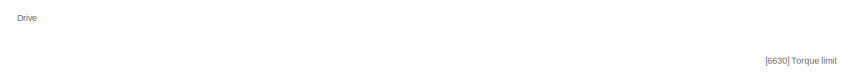
[diagram: PLC and Drive Logic Rev3/VFD Control2/[6020] Speed control and generation of the torque limits  - part 1/3, top left region]
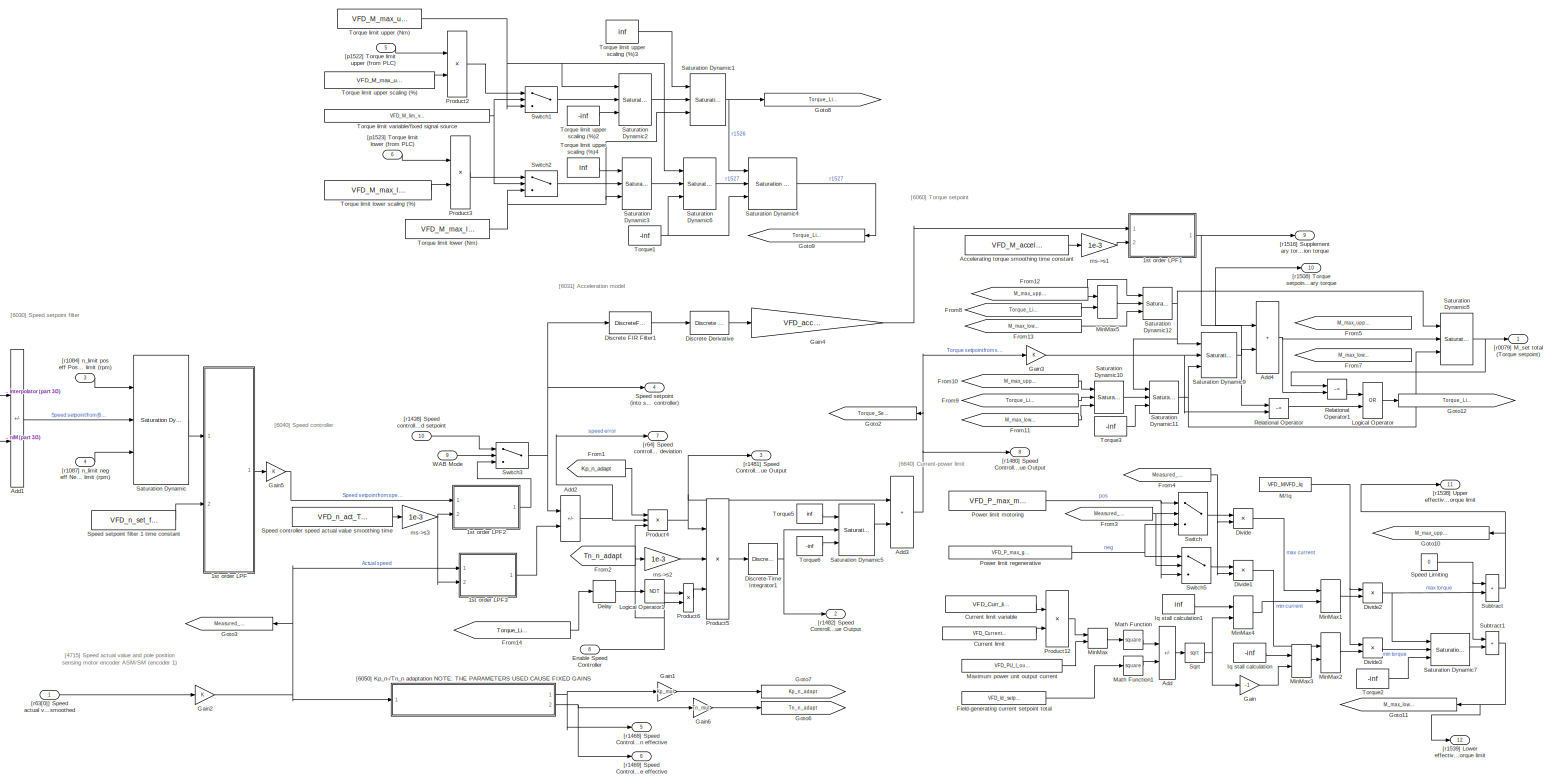
[diagram: PLC and Drive Logic Rev3/VFD Control2/[6020] Speed control and generation of the torque limits  - part 2/3, most of the canvas]
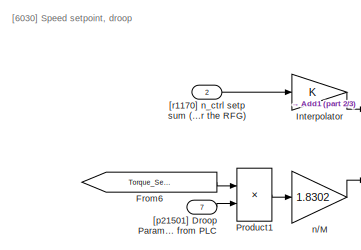
[diagram: PLC and Drive Logic Rev3/VFD Control2/[6020] Speed control and generation of the torque limits  - part 3/3, middle left region]
BLOCK [SubSystem] PLC and Drive Logic Rev3/VFD Control2/[6020] Speed control and generation of the torque limits 
  Ports = [10, 12]
  RequestExecContextInheritance = off
BLOCK [SubSystem] PLC and Drive Logic Rev3/VFD Control2/[6020] Speed control and generation of the torque limits /1st order LPF
  Ports = [2, 1]
  RequestExecContextInheritance = off
BLOCK [Sum] PLC and Drive Logic Rev3/VFD Control2/[6020] Speed control and generation of the torque limits /1st order LPF/Add1
  IconShape = rectangular
  Ports = [2, 1]
BLOCK [Sum] PLC and Drive Logic Rev3/VFD Control2/[6020] Speed control and generation of the torque limits /1st order LPF/Add3
  IconShape = rectangular
  Ports = [2, 1]
BLOCK [Sum] PLC and Drive Logic Rev3/VFD Control2/[6020] Speed control and generation of the torque limits /1st order LPF/Add4
  IconShape = rectangular
  Inputs = +-
  Ports = [2, 1]
BLOCK [Constant] PLC and Drive Logic Rev3/VFD Control2/[6020] Speed control and generation of the torque limits /1st order LPF/Constant1
  Value = Controller_sampleTime
BLOCK [Product] PLC and Drive Logic Rev3/VFD Control2/[6020] Speed control and generation of the torque limits /1st order LPF/Divide
  Inputs = */
  Ports = [2, 1]
BLOCK [Memory] PLC and Drive Logic Rev3/VFD Control2/[6020] Speed control and generation of the torque limits /1st order LPF/Memory1
  InheritSampleTime = on
  InitialCondition = Yo
BLOCK [Product] PLC and Drive Logic Rev3/VFD Control2/[6020] Speed control and generation of the torque limits /1st order LPF/Product1
  Ports = [2, 1]
  RndMeth = Zero
BLOCK [Inport] PLC and Drive Logic Rev3/VFD Control2/[6020] Speed control and generation of the torque limits /1st order LPF/Signal
BLOCK [Outport] PLC and Drive Logic Rev3/VFD Control2/[6020] Speed control and generation of the torque limits /1st order LPF/Signal Out
  VectorParamsAs1DForOutWhenUnconnected = off
BLOCK [Inport] PLC and Drive Logic Rev3/VFD Control2/[6020] Speed control and generation of the torque limits /1st order LPF/Time Constant
  Port = 2
BLOCK [SubSystem] PLC and Drive Logic Rev3/VFD Control2/[6020] Speed control and generation of the torque limits /1st order LPF1
  Ports = [2, 1]
  RequestExecContextInheritance = off
BLOCK [Sum] PLC and Drive Logic Rev3/VFD Control2/[6020] Speed control and generation of the torque limits /1st order LPF1/Add1
  IconShape = rectangular
  Ports = [2, 1]
BLOCK [Sum] PLC and Drive Logic Rev3/VFD Control2/[6020] Speed control and generation of the torque limits /1st order LPF1/Add3
  IconShape = rectangular
  Ports = [2, 1]
BLOCK [Sum] PLC and Drive Logic Rev3/VFD Control2/[6020] Speed control and generation of the torque limits /1st order LPF1/Add4
  IconShape = rectangular
  Inputs = +-
  Ports = [2, 1]
BLOCK [Constant] PLC and Drive Logic Rev3/VFD Control2/[6020] Speed control and generation of the torque limits /1st order LPF1/Constant1
  Value = Controller_sampleTime
BLOCK [Product] PLC and Drive Logic Rev3/VFD Control2/[6020] Speed control and generation of the torque limits /1st order LPF1/Divide
  Inputs = */
  Ports = [2, 1]
BLOCK [Memory] PLC and Drive Logic Rev3/VFD Control2/[6020] Speed control and generation of the torque limits /1st order LPF1/Memory1
  InheritSampleTime = on
  InitialCondition = Yo
BLOCK [Product] PLC and Drive Logic Rev3/VFD Control2/[6020] Speed control and generation of the torque limits /1st order LPF1/Product1
  Ports = [2, 1]
  RndMeth = Zero
BLOCK [Inport] PLC and Drive Logic Rev3/VFD Control2/[6020] Speed control and generation of the torque limits /1st order LPF1/Signal
BLOCK [Outport] PLC and Drive Logic Rev3/VFD Control2/[6020] Speed control and generation of the torque limits /1st order LPF1/Signal Out
  VectorParamsAs1DForOutWhenUnconnected = off
BLOCK [Inport] PLC and Drive Logic Rev3/VFD Control2/[6020] Speed control and generation of the torque limits /1st order LPF1/Time Constant
  Port = 2
BLOCK [SubSystem] PLC and Drive Logic Rev3/VFD Control2/[6020] Speed control and generation of the torque limits /1st order LPF2
  Ports = [2, 1]
  RequestExecContextInheritance = off
BLOCK [Sum] PLC and Drive Logic Rev3/VFD Control2/[6020] Speed control and generation of the torque limits /1st order LPF2/Add1
  IconShape = rectangular
  Ports = [2, 1]
BLOCK [Sum] PLC and Drive Logic Rev3/VFD Control2/[6020] Speed control and generation of the torque limits /1st order LPF2/Add3
  IconShape = rectangular
  Ports = [2, 1]
BLOCK [Sum] PLC and Drive Logic Rev3/VFD Control2/[6020] Speed control and generation of the torque limits /1st order LPF2/Add4
  IconShape = rectangular
  Inputs = +-
  Ports = [2, 1]
BLOCK [Constant] PLC and Drive Logic Rev3/VFD Control2/[6020] Speed control and generation of the torque limits /1st order LPF2/Constant1
  Value = Controller_sampleTime
BLOCK [Product] PLC and Drive Logic Rev3/VFD Control2/[6020] Speed control and generation of the torque limits /1st order LPF2/Divide
  Inputs = */
  Ports = [2, 1]
BLOCK [Memory] PLC and Drive Logic Rev3/VFD Control2/[6020] Speed control and generation of the torque limits /1st order LPF2/Memory1
  InheritSampleTime = on
  InitialCondition = Yo
BLOCK [Product] PLC and Drive Logic Rev3/VFD Control2/[6020] Speed control and generation of the torque limits /1st order LPF2/Product1
  Ports = [2, 1]
  RndMeth = Zero
BLOCK [Inport] PLC and Drive Logic Rev3/VFD Control2/[6020] Speed control and generation of the torque limits /1st order LPF2/Signal
BLOCK [Outport] PLC and Drive Logic Rev3/VFD Control2/[6020] Speed control and generation of the torque limits /1st order LPF2/Signal Out
  VectorParamsAs1DForOutWhenUnconnected = off
BLOCK [Inport] PLC and Drive Logic Rev3/VFD Control2/[6020] Speed control and generation of the torque limits /1st order LPF2/Time Constant
  Port = 2
BLOCK [SubSystem] PLC and Drive Logic Rev3/VFD Control2/[6020] Speed control and generation of the torque limits /1st order LPF3
  Ports = [2, 1]
  RequestExecContextInheritance = off
BLOCK [Sum] PLC and Drive Logic Rev3/VFD Control2/[6020] Speed control and generation of the torque limits /1st order LPF3/Add1
  IconShape = rectangular
  Ports = [2, 1]
BLOCK [Sum] PLC and Drive Logic Rev3/VFD Control2/[6020] Speed control and generation of the torque limits /1st order LPF3/Add3
  IconShape = rectangular
  Ports = [2, 1]
BLOCK [Sum] PLC and Drive Logic Rev3/VFD Control2/[6020] Speed control and generation of the torque limits /1st order LPF3/Add4
  IconShape = rectangular
  Inputs = +-
  Ports = [2, 1]
BLOCK [Constant] PLC and Drive Logic Rev3/VFD Control2/[6020] Speed control and generation of the torque limits /1st order LPF3/Constant1
  Value = Controller_sampleTime
BLOCK [Product] PLC and Drive Logic Rev3/VFD Control2/[6020] Speed control and generation of the torque limits /1st order LPF3/Divide
  Inputs = */
  Ports = [2, 1]
BLOCK [Memory] PLC and Drive Logic Rev3/VFD Control2/[6020] Speed control and generation of the torque limits /1st order LPF3/Memory1
  InheritSampleTime = on
  InitialCondition = Yo
BLOCK [Product] PLC and Drive Logic Rev3/VFD Control2/[6020] Speed control and generation of the torque limits /1st order LPF3/Product1
  Ports = [2, 1]
  RndMeth = Zero
BLOCK [Inport] PLC and Drive Logic Rev3/VFD Control2/[6020] Speed control and generation of the torque limits /1st order LPF3/Signal
BLOCK [Outport] PLC and Drive Logic Rev3/VFD Control2/[6020] Speed control and generation of the torque limits /1st order LPF3/Signal Out
  VectorParamsAs1DForOutWhenUnconnected = off
BLOCK [Inport] PLC and Drive Logic Rev3/VFD Control2/[6020] Speed control and generation of the torque limits /1st order LPF3/Time Constant
  Port = 2
BLOCK [Constant] PLC and Drive Logic Rev3/VFD Control2/[6020] Speed control and generation of the torque limits /Accelerating torque smoothing time constant
  Value = VFD_M_accel_T_smooth_p1517
BLOCK [Sum] PLC and Drive Logic Rev3/VFD Control2/[6020] Speed control and generation of the torque limits /Add
  IconShape = rectangular
  Inputs = +-
  Ports = [2, 1]
BLOCK [Sum] PLC and Drive Logic Rev3/VFD Control2/[6020] Speed control and generation of the torque limits /Add1
  IconShape = rectangular
  Inputs = +-
  Ports = [2, 1]
BLOCK [Sum] PLC and Drive Logic Rev3/VFD Control2/[6020] Speed control and generation of the torque limits /Add2
  IconShape = rectangular
  Inputs = +-
  Ports = [2, 1]
BLOCK [Sum] PLC and Drive Logic Rev3/VFD Control2/[6020] Speed control and generation of the torque limits /Add3
  IconShape = rectangular
  Ports = [2, 1]
BLOCK [Sum] PLC and Drive Logic Rev3/VFD Control2/[6020] Speed control and generation of the torque limits /Add4
  IconShape = rectangular
  Ports = [2, 1]
BLOCK [Constant] PLC and Drive Logic Rev3/VFD Control2/[6020] Speed control and generation of the torque limits /Current limit
  Value = VFD_Current_limit_p0640
BLOCK [Constant] PLC and Drive Logic Rev3/VFD Control2/[6020] Speed control and generation of the torque limits /Current limit variable
  Value = VFD_Curr_limit_var_p0641
BLOCK [Delay] PLC and Drive Logic Rev3/VFD Control2/[6020] Speed control and generation of the torque limits /Delay
  DelayLength = 1
  InputPortMap = u0
  Ports = [1, 1]
BLOCK [Reference] PLC and Drive Logic Rev3/VFD Control2/[6020] Speed control and generation of the torque limits /Discrete Derivative  REF=simulink/Discrete/Discrete Derivative
  Ports = [1, 1]
  SourceBlock = simulink/Discrete/Discrete Derivative
  SourceProductBaseCode = SL
  SourceType = Discrete Derivative
BLOCK [DiscreteFir] PLC and Drive Logic Rev3/VFD Control2/[6020] Speed control and generation of the torque limits /Discrete FIR Filter1
  Coefficients = filt_NUM
  InputPortMap = u0
  OutputPortMap = o0
  Ports = [1, 1]
BLOCK [DiscreteIntegrator] PLC and Drive Logic Rev3/VFD Control2/[6020] Speed control and generation of the torque limits /Discrete-Time Integrator1
  ICPrevOutput = DiscIntNeverNeededParam
  ICPrevScaledInput = DiscIntNeverNeededParam
  InitialCondition = tau_m
  Ports = [1, 1]
  SampleTime = 0.001
BLOCK [Product] PLC and Drive Logic Rev3/VFD Control2/[6020] Speed control and generation of the torque limits /Divide
  Inputs = */
  Ports = [2, 1]
BLOCK [Product] PLC and Drive Logic Rev3/VFD Control2/[6020] Speed control and generation of the torque limits /Divide1
  Inputs = */
  Ports = [2, 1]
BLOCK [Product] PLC and Drive Logic Rev3/VFD Control2/[6020] Speed control and generation of the torque limits /Divide2
  Inputs = **
  Ports = [2, 1]
BLOCK [Product] PLC and Drive Logic Rev3/VFD Control2/[6020] Speed control and generation of the torque limits /Divide3
  Inputs = **
  Ports = [2, 1]
BLOCK [Inport] PLC and Drive Logic Rev3/VFD Control2/[6020] Speed control and generation of the torque limits /Enable Speed Controller
  Port = 8
BLOCK [Constant] PLC and Drive Logic Rev3/VFD Control2/[6020] Speed control and generation of the torque limits /Field-generating current setpoint total
  Value = VFD_Id_setp_total_r1624
BLOCK [From] PLC and Drive Logic Rev3/VFD Control2/[6020] Speed control and generation of the torque limits /From1
  GotoTag = Kp_n_adapt
BLOCK [From] PLC and Drive Logic Rev3/VFD Control2/[6020] Speed control and generation of the torque limits /From10
  GotoTag = M_max_upper_effective_r1538
BLOCK [From] PLC and Drive Logic Rev3/VFD Control2/[6020] Speed control and generation of the torque limits /From11
  GotoTag = M_max_lower_effective_r1539
BLOCK [From] PLC and Drive Logic Rev3/VFD Control2/[6020] Speed control and generation of the torque limits /From12
  GotoTag = M_max_upper_effective_r1538
BLOCK [From] PLC and Drive Logic Rev3/VFD Control2/[6020] Speed control and generation of the torque limits /From13
  GotoTag = M_max_lower_effective_r1539
BLOCK [From] PLC and Drive Logic Rev3/VFD Control2/[6020] Speed control and generation of the torque limits /From14
  GotoTag = Torque_Limit_Reached_r1407_7
BLOCK [From] PLC and Drive Logic Rev3/VFD Control2/[6020] Speed control and generation of the torque limits /From2
  GotoTag = Tn_n_adapt
BLOCK [From] PLC and Drive Logic Rev3/VFD Control2/[6020] Speed control and generation of the torque limits /From3
  GotoTag = Measured_RPM_r0063
BLOCK [From] PLC and Drive Logic Rev3/VFD Control2/[6020] Speed control and generation of the torque limits /From4
  GotoTag = Measured_RPM_r0063
BLOCK [From] PLC and Drive Logic Rev3/VFD Control2/[6020] Speed control and generation of the torque limits /From5
  GotoTag = M_max_upper_effective_r1538
BLOCK [From] PLC and Drive Logic Rev3/VFD Control2/[6020] Speed control and generation of the torque limits /From6
  GotoTag = Torque_Setpoint_Nm
  NameLocation = top
BLOCK [From] PLC and Drive Logic Rev3/VFD Control2/[6020] Speed control and generation of the torque limits /From7
  GotoTag = M_max_lower_effective_r1539
BLOCK [From] PLC and Drive Logic Rev3/VFD Control2/[6020] Speed control and generation of the torque limits /From8
  GotoTag = Torque_Limit_Upper_r1526
BLOCK [From] PLC and Drive Logic Rev3/VFD Control2/[6020] Speed control and generation of the torque limits /From9
  GotoTag = Torque_Limit_Lower_r1527
BLOCK [Gain] PLC and Drive Logic Rev3/VFD Control2/[6020] Speed control and generation of the torque limits /Gain
  Gain = -1
BLOCK [Gain] PLC and Drive Logic Rev3/VFD Control2/[6020] Speed control and generation of the torque limits /Gain1
  Gain = Kp_mul
BLOCK [Gain] PLC and Drive Logic Rev3/VFD Control2/[6020] Speed control and generation of the torque limits /Gain2
BLOCK [Gain] PLC and Drive Logic Rev3/VFD Control2/[6020] Speed control and generation of the torque limits /Gain3
BLOCK [Gain] PLC and Drive Logic Rev3/VFD Control2/[6020] Speed control and generation of the torque limits /Gain4
  Gain = VFD_acceleration_model_factor
BLOCK [Gain] PLC and Drive Logic Rev3/VFD Control2/[6020] Speed control and generation of the torque limits /Gain5
BLOCK [Gain] PLC and Drive Logic Rev3/VFD Control2/[6020] Speed control and generation of the torque limits /Gain6
  Gain = Tn_mul
BLOCK [Goto] PLC and Drive Logic Rev3/VFD Control2/[6020] Speed control and generation of the torque limits /Goto10
  GotoTag = M_max_upper_effective_r1538
  NameLocation = top
BLOCK [Goto] PLC and Drive Logic Rev3/VFD Control2/[6020] Speed control and generation of the torque limits /Goto11
  GotoTag = M_max_lower_effective_r1539
  NameLocation = top
BLOCK [Goto] PLC and Drive Logic Rev3/VFD Control2/[6020] Speed control and generation of the torque limits /Goto12
  GotoTag = Torque_Limit_Reached_r1407_7
BLOCK [Goto] PLC and Drive Logic Rev3/VFD Control2/[6020] Speed control and generation of the torque limits /Goto2
  GotoTag = Torque_Setpoint_Nm
  NameLocation = top
BLOCK [Goto] PLC and Drive Logic Rev3/VFD Control2/[6020] Speed control and generation of the torque limits /Goto3
  GotoTag = Measured_RPM_r0063
  NameLocation = top
BLOCK [Goto] PLC and Drive Logic Rev3/VFD Control2/[6020] Speed control and generation of the torque limits /Goto6
  GotoTag = Tn_n_adapt
BLOCK [Goto] PLC and Drive Logic Rev3/VFD Control2/[6020] Speed control and generation of the torque limits /Goto7
  GotoTag = Kp_n_adapt
BLOCK [Goto] PLC and Drive Logic Rev3/VFD Control2/[6020] Speed control and generation of the torque limits /Goto8
  GotoTag = Torque_Limit_Upper_r1526
BLOCK [Goto] PLC and Drive Logic Rev3/VFD Control2/[6020] Speed control and generation of the torque limits /Goto9
  GotoTag = Torque_Limit_Lower_r1527
  NameLocation = top
BLOCK [Gain] PLC and Drive Logic Rev3/VFD Control2/[6020] Speed control and generation of the torque limits /Interpolator
BLOCK [Constant] PLC and Drive Logic Rev3/VFD Control2/[6020] Speed control and generation of the torque limits /Iq stall calculation
  Value = -inf
BLOCK [Constant] PLC and Drive Logic Rev3/VFD Control2/[6020] Speed control and generation of the torque limits /Iq stall calculation1
  Value = inf
BLOCK [Logic] PLC and Drive Logic Rev3/VFD Control2/[6020] Speed control and generation of the torque limits /Logical Operator
  AllPortsSameDT = off
  Operator = OR
  OutDataTypeStr = boolean
  Ports = [2, 1]
BLOCK [Logic] PLC and Drive Logic Rev3/VFD Control2/[6020] Speed control and generation of the torque limits /Logical Operator1
  AllPortsSameDT = off
  Operator = NOT
  OutDataTypeStr = boolean
  Ports = [1, 1]
BLOCK [Constant] PLC and Drive Logic Rev3/VFD Control2/[6020] Speed control and generation of the torque limits /M//Iq
  Value = VFD_M/VFD_Iq
BLOCK [Math] PLC and Drive Logic Rev3/VFD Control2/[6020] Speed control and generation of the torque limits /Math Function
  Operator = square
  Ports = [1, 1]
BLOCK [Math] PLC and Drive Logic Rev3/VFD Control2/[6020] Speed control and generation of the torque limits /Math Function1
  Operator = square
  Ports = [1, 1]
BLOCK [Constant] PLC and Drive Logic Rev3/VFD Control2/[6020] Speed control and generation of the torque limits /Maximum power unit output current
  Value = VFD_PU_I_outp_max_r0289
BLOCK [MinMax] PLC and Drive Logic Rev3/VFD Control2/[6020] Speed control and generation of the torque limits /MinMax
  Inputs = 2
  Ports = [2, 1]
BLOCK [MinMax] PLC and Drive Logic Rev3/VFD Control2/[6020] Speed control and generation of the torque limits /MinMax1
  Inputs = 2
  Ports = [2, 1]
BLOCK [MinMax] PLC and Drive Logic Rev3/VFD Control2/[6020] Speed control and generation of the torque limits /MinMax2
  Function = max
  Inputs = 2
  Ports = [2, 1]
BLOCK [MinMax] PLC and Drive Logic Rev3/VFD Control2/[6020] Speed control and generation of the torque limits /MinMax3
  Function = max
  Inputs = 2
  Ports = [2, 1]
BLOCK [MinMax] PLC and Drive Logic Rev3/VFD Control2/[6020] Speed control and generation of the torque limits /MinMax4
  Inputs = 2
  Ports = [2, 1]
BLOCK [MinMax] PLC and Drive Logic Rev3/VFD Control2/[6020] Speed control and generation of the torque limits /MinMax5
  Inputs = 2
  Ports = [2, 1]
BLOCK [Constant] PLC and Drive Logic Rev3/VFD Control2/[6020] Speed control and generation of the torque limits /Power limit motoring
  Value = VFD_P_max_mot_p1530
BLOCK [Constant] PLC and Drive Logic Rev3/VFD Control2/[6020] Speed control and generation of the torque limits /Power limit regenerative
  Value = VFD_P_max_gen_p1531
BLOCK [Product] PLC and Drive Logic Rev3/VFD Control2/[6020] Speed control and generation of the torque limits /Product1
  Inputs = **
  Ports = [2, 1]
BLOCK [Product] PLC and Drive Logic Rev3/VFD Control2/[6020] Speed control and generation of the torque limits /Product12
  Ports = [2, 1]
BLOCK [Product] PLC and Drive Logic Rev3/VFD Control2/[6020] Speed control and generation of the torque limits /Product2
  Ports = [2, 1]
BLOCK [Product] PLC and Drive Logic Rev3/VFD Control2/[6020] Speed control and generation of the torque limits /Product3
  Ports = [2, 1]
BLOCK [Product] PLC and Drive Logic Rev3/VFD Control2/[6020] Speed control and generation of the torque limits /Product4
  Inputs = 3
  Ports = [3, 1]
BLOCK [Product] PLC and Drive Logic Rev3/VFD Control2/[6020] Speed control and generation of the torque limits /Product5
  Inputs = */*
  Ports = [3, 1]
BLOCK [Product] PLC and Drive Logic Rev3/VFD Control2/[6020] Speed control and generation of the torque limits /Product6
  Inputs = **
  Ports = [2, 1]
BLOCK [RelationalOperator] PLC and Drive Logic Rev3/VFD Control2/[6020] Speed control and generation of the torque limits /Relational Operator
  InputSameDT = off
  Operator = ~=
  OutDataTypeStr = boolean
  Ports = [2, 1]
  RndMeth = Simplest
BLOCK [RelationalOperator] PLC and Drive Logic Rev3/VFD Control2/[6020] Speed control and generation of the torque limits /Relational Operator1
  InputSameDT = off
  Operator = ~=
  OutDataTypeStr = boolean
  Ports = [2, 1]
  RndMeth = Simplest
BLOCK [Reference] PLC and Drive Logic Rev3/VFD Control2/[6020] Speed control and generation of the torque limits /Saturation Dynamic  REF=simulink/Discontinuities/Saturation
Dynamic
  Ports = [3, 1]
  SourceBlock = simulink/Discontinuities/Saturation\nDynamic
  SourceProductBaseCode = SL
  SourceType = Saturation Dynamic
BLOCK [Reference] PLC and Drive Logic Rev3/VFD Control2/[6020] Speed control and generation of the torque limits /Saturation Dynamic1  REF=simulink/Discontinuities/Saturation
Dynamic
  Ports = [3, 1]
  SourceBlock = simulink/Discontinuities/Saturation\nDynamic
  SourceProductBaseCode = SL
  SourceType = Saturation Dynamic
BLOCK [Reference] PLC and Drive Logic Rev3/VFD Control2/[6020] Speed control and generation of the torque limits /Saturation Dynamic10  REF=simulink/Discontinuities/Saturation
Dynamic
  Ports = [3, 1]
  SourceBlock = simulink/Discontinuities/Saturation\nDynamic
  SourceProductBaseCode = SL
  SourceType = Saturation Dynamic
BLOCK [Reference] PLC and Drive Logic Rev3/VFD Control2/[6020] Speed control and generation of the torque limits /Saturation Dynamic11  REF=simulink/Discontinuities/Saturation
Dynamic
  Ports = [3, 1]
  SourceBlock = simulink/Discontinuities/Saturation\nDynamic
  SourceProductBaseCode = SL
  SourceType = Saturation Dynamic
BLOCK [Reference] PLC and Drive Logic Rev3/VFD Control2/[6020] Speed control and generation of the torque limits /Saturation Dynamic12  REF=simulink/Discontinuities/Saturation
Dynamic
  Ports = [3, 1]
  SourceBlock = simulink/Discontinuities/Saturation\nDynamic
  SourceProductBaseCode = SL
  SourceType = Saturation Dynamic
BLOCK [Reference] PLC and Drive Logic Rev3/VFD Control2/[6020] Speed control and generation of the torque limits /Saturation Dynamic2  REF=simulink/Discontinuities/Saturation
Dynamic
  Ports = [3, 1]
  SourceBlock = simulink/Discontinuities/Saturation\nDynamic
  SourceProductBaseCode = SL
  SourceType = Saturation Dynamic
BLOCK [Reference] PLC and Drive Logic Rev3/VFD Control2/[6020] Speed control and generation of the torque limits /Saturation Dynamic3  REF=simulink/Discontinuities/Saturation
Dynamic
  Ports = [3, 1]
  SourceBlock = simulink/Discontinuities/Saturation\nDynamic
  SourceProductBaseCode = SL
  SourceType = Saturation Dynamic
BLOCK [Reference] PLC and Drive Logic Rev3/VFD Control2/[6020] Speed control and generation of the torque limits /Saturation Dynamic4  REF=simulink/Discontinuities/Saturation
Dynamic
  Ports = [3, 1]
  SourceBlock = simulink/Discontinuities/Saturation\nDynamic
  SourceProductBaseCode = SL
  SourceType = Saturation Dynamic
BLOCK [Reference] PLC and Drive Logic Rev3/VFD Control2/[6020] Speed control and generation of the torque limits /Saturation Dynamic5  REF=simulink/Discontinuities/Saturation
Dynamic
  Ports = [3, 1]
  SourceBlock = simulink/Discontinuities/Saturation\nDynamic
  SourceProductBaseCode = SL
  SourceType = Saturation Dynamic
BLOCK [Reference] PLC and Drive Logic Rev3/VFD Control2/[6020] Speed control and generation of the torque limits /Saturation Dynamic6  REF=simulink/Discontinuities/Saturation
Dynamic
  Ports = [3, 1]
  SourceBlock = simulink/Discontinuities/Saturation\nDynamic
  SourceProductBaseCode = SL
  SourceType = Saturation Dynamic
BLOCK [Reference] PLC and Drive Logic Rev3/VFD Control2/[6020] Speed control and generation of the torque limits /Saturation Dynamic7  REF=simulink/Discontinuities/Saturation
Dynamic
  Ports = [3, 1]
  SourceBlock = simulink/Discontinuities/Saturation\nDynamic
  SourceProductBaseCode = SL
  SourceType = Saturation Dynamic
BLOCK [Reference] PLC and Drive Logic Rev3/VFD Control2/[6020] Speed control and generation of the torque limits /Saturation Dynamic8  REF=simulink/Discontinuities/Saturation
Dynamic
  Ports = [3, 1]
  SourceBlock = simulink/Discontinuities/Saturation\nDynamic
  SourceProductBaseCode = SL
  SourceType = Saturation Dynamic
BLOCK [Reference] PLC and Drive Logic Rev3/VFD Control2/[6020] Speed control and generation of the torque limits /Saturation Dynamic9  REF=simulink/Discontinuities/Saturation
Dynamic
  Ports = [3, 1]
  SourceBlock = simulink/Discontinuities/Saturation\nDynamic
  SourceProductBaseCode = SL
  SourceType = Saturation Dynamic
BLOCK [Constant] PLC and Drive Logic Rev3/VFD Control2/[6020] Speed control and generation of the torque limits /Speed Limiting
  Value = 0
BLOCK [Constant] PLC and Drive Logic Rev3/VFD Control2/[6020] Speed control and generation of the torque limits /Speed controller speed actual value smoothing time
  Value = VFD_n_act_T_smooth_p1442
BLOCK [Outport] PLC and Drive Logic Rev3/VFD Control2/[6020] Speed control and generation of the torque limits /Speed setpoint (into speed controller)
  Port = 4
  VectorParamsAs1DForOutWhenUnconnected = off
BLOCK [Constant] PLC and Drive Logic Rev3/VFD Control2/[6020] Speed control and generation of the torque limits /Speed setpoint filter 1 time constant 
  Value = VFD_n_set_filt_1_T_p1416
BLOCK [Sqrt] PLC and Drive Logic Rev3/VFD Control2/[6020] Speed control and generation of the torque limits /Sqrt
BLOCK [Sum] PLC and Drive Logic Rev3/VFD Control2/[6020] Speed control and generation of the torque limits /Subtract
  IconShape = rectangular
  Ports = [2, 1]
BLOCK [Sum] PLC and Drive Logic Rev3/VFD Control2/[6020] Speed control and generation of the torque limits /Subtract1
  IconShape = rectangular
  Ports = [2, 1]
BLOCK [Switch] PLC and Drive Logic Rev3/VFD Control2/[6020] Speed control and generation of the torque limits /Switch
  InputSameDT = off
  SaturateOnIntegerOverflow = off
BLOCK [Switch] PLC and Drive Logic Rev3/VFD Control2/[6020] Speed control and generation of the torque limits /Switch1
  Criteria = u2 > Threshold
  InputSameDT = off
  SaturateOnIntegerOverflow = off
BLOCK [Switch] PLC and Drive Logic Rev3/VFD Control2/[6020] Speed control and generation of the torque limits /Switch2
  Criteria = u2 > Threshold
  InputSameDT = off
  SaturateOnIntegerOverflow = off
BLOCK [Switch] PLC and Drive Logic Rev3/VFD Control2/[6020] Speed control and generation of the torque limits /Switch3
  Criteria = u2 > Threshold
  InputSameDT = off
  SaturateOnIntegerOverflow = off
BLOCK [Switch] PLC and Drive Logic Rev3/VFD Control2/[6020] Speed control and generation of the torque limits /Switch5
  InputSameDT = off
  SaturateOnIntegerOverflow = off
BLOCK [Constant] PLC and Drive Logic Rev3/VFD Control2/[6020] Speed control and generation of the torque limits /Torque limit lower (Nm)
  Value = VFD_M_max_lower_p1521
BLOCK [Constant] PLC and Drive Logic Rev3/VFD Control2/[6020] Speed control and generation of the torque limits /Torque limit lower scaling (%)
  Value = VFD_M_max_lower_scal_p1525
BLOCK [Constant] PLC and Drive Logic Rev3/VFD Control2/[6020] Speed control and generation of the torque limits /Torque limit upper (Nm)
  Value = VFD_M_max_upper_p1520
BLOCK [Constant] PLC and Drive Logic Rev3/VFD Control2/[6020] Speed control and generation of the torque limits /Torque limit upper scaling (%)
  Value = VFD_M_max_up_mot_scal_p1524
BLOCK [Constant] PLC and Drive Logic Rev3/VFD Control2/[6020] Speed control and generation of the torque limits /Torque limit upper scaling (%)2
  Value = -inf
BLOCK [Constant] PLC and Drive Logic Rev3/VFD Control2/[6020] Speed control and generation of the torque limits /Torque limit upper scaling (%)3
  Value = inf
BLOCK [Constant] PLC and Drive Logic Rev3/VFD Control2/[6020] Speed control and generation of the torque limits /Torque limit upper scaling (%)4
  Value = inf
BLOCK [Constant] PLC and Drive Logic Rev3/VFD Control2/[6020] Speed control and generation of the torque limits /Torque limit variable//fixed signal source
  Value = VFD_M_lim_var_fixS_src_p1551
BLOCK [Constant] PLC and Drive Logic Rev3/VFD Control2/[6020] Speed control and generation of the torque limits /Torque1
  Value = -inf
BLOCK [Constant] PLC and Drive Logic Rev3/VFD Control2/[6020] Speed control and generation of the torque limits /Torque2
  Value = -inf
BLOCK [Constant] PLC and Drive Logic Rev3/VFD Control2/[6020] Speed control and generation of the torque limits /Torque3
  Value = -inf
BLOCK [Constant] PLC and Drive Logic Rev3/VFD Control2/[6020] Speed control and generation of the torque limits /Torque5
  Value = inf
BLOCK [Constant] PLC and Drive Logic Rev3/VFD Control2/[6020] Speed control and generation of the torque limits /Torque6
  Value = -inf
BLOCK [Inport] PLC and Drive Logic Rev3/VFD Control2/[6020] Speed control and generation of the torque limits /WAB Mode
  Port = 9
BLOCK [SubSystem] PLC and Drive Logic Rev3/VFD Control2/[6020] Speed control and generation of the torque limits /[6050] Kp_n-//Tn_n adaptation NOTE: THE PARAMETERS USED CAUSE FIXED GAINS
  Ports = [1, 2]
  RequestExecContextInheritance = off
BLOCK [Abs] PLC and Drive Logic Rev3/VFD Control2/[6020] Speed control and generation of the torque limits /[6050] Kp_n-//Tn_n adaptation NOTE: THE PARAMETERS USED CAUSE FIXED GAINS/Abs
  SaturateOnIntegerOverflow = off
BLOCK [Abs] PLC and Drive Logic Rev3/VFD Control2/[6020] Speed control and generation of the torque limits /[6050] Kp_n-//Tn_n adaptation NOTE: THE PARAMETERS USED CAUSE FIXED GAINS/Abs1
  SaturateOnIntegerOverflow = off
BLOCK [Constant] PLC and Drive Logic Rev3/VFD Control2/[6020] Speed control and generation of the torque limits /[6050] Kp_n-//Tn_n adaptation NOTE: THE PARAMETERS USED CAUSE FIXED GAINS/Adaptation factor lower
  Value = VFD_Adapt_factor_lower_p1458
BLOCK [Constant] PLC and Drive Logic Rev3/VFD Control2/[6020] Speed control and generation of the torque limits /[6050] Kp_n-//Tn_n adaptation NOTE: THE PARAMETERS USED CAUSE FIXED GAINS/Adaptation factor upper 
  Value = VFD_Adapt_factor_upper_p1459
BLOCK [Reference] PLC and Drive Logic Rev3/VFD Control2/[6020] Speed control and generation of the torque limits /[6050] Kp_n-//Tn_n adaptation NOTE: THE PARAMETERS USED CAUSE FIXED GAINS/Free Kp_n adaptation  REF=simulink/Lookup
Tables/Lookup
Table
Dynamic
  Ports = [3, 1]
  SourceBlock = simulink/Lookup\nTables/Lookup\nTable\nDynamic
  SourceProductBaseCode = SL
  SourceType = Lookup Table Dynamic
BLOCK [Outport] PLC and Drive Logic Rev3/VFD Control2/[6020] Speed control and generation of the torque limits /[6050] Kp_n-//Tn_n adaptation NOTE: THE PARAMETERS USED CAUSE FIXED GAINS/Kp_n_adapt
BLOCK [Inport] PLC and Drive Logic Rev3/VFD Control2/[6020] Speed control and generation of the torque limits /[6050] Kp_n-//Tn_n adaptation NOTE: THE PARAMETERS USED CAUSE FIXED GAINS/Measured_RPM_r0063
BLOCK [Mux] PLC and Drive Logic Rev3/VFD Control2/[6020] Speed control and generation of the torque limits /[6050] Kp_n-//Tn_n adaptation NOTE: THE PARAMETERS USED CAUSE FIXED GAINS/Mux
  DisplayOption = bar
  Inputs = 2
  Ports = [2, 1]
BLOCK [Mux] PLC and Drive Logic Rev3/VFD Control2/[6020] Speed control and generation of the torque limits /[6050] Kp_n-//Tn_n adaptation NOTE: THE PARAMETERS USED CAUSE FIXED GAINS/Mux1
  DisplayOption = bar
  Inputs = 2
  Ports = [2, 1]
BLOCK [Mux] PLC and Drive Logic Rev3/VFD Control2/[6020] Speed control and generation of the torque limits /[6050] Kp_n-//Tn_n adaptation NOTE: THE PARAMETERS USED CAUSE FIXED GAINS/Mux2
  DisplayOption = bar
  Inputs = 2
  Ports = [2, 1]
BLOCK [Mux] PLC and Drive Logic Rev3/VFD Control2/[6020] Speed control and generation of the torque limits /[6050] Kp_n-//Tn_n adaptation NOTE: THE PARAMETERS USED CAUSE FIXED GAINS/Mux3
  DisplayOption = bar
  Inputs = 2
  Ports = [2, 1]
BLOCK [Mux] PLC and Drive Logic Rev3/VFD Control2/[6020] Speed control and generation of the torque limits /[6050] Kp_n-//Tn_n adaptation NOTE: THE PARAMETERS USED CAUSE FIXED GAINS/Mux4
  DisplayOption = bar
  Inputs = 2
  Ports = [2, 1]
BLOCK [Product] PLC and Drive Logic Rev3/VFD Control2/[6020] Speed control and generation of the torque limits /[6050] Kp_n-//Tn_n adaptation NOTE: THE PARAMETERS USED CAUSE FIXED GAINS/Product1
  Inputs = **
  Ports = [2, 1]
BLOCK [Product] PLC and Drive Logic Rev3/VFD Control2/[6020] Speed control and generation of the torque limits /[6050] Kp_n-//Tn_n adaptation NOTE: THE PARAMETERS USED CAUSE FIXED GAINS/Product6
  Inputs = **
  Ports = [2, 1]
BLOCK [Product] PLC and Drive Logic Rev3/VFD Control2/[6020] Speed control and generation of the torque limits /[6050] Kp_n-//Tn_n adaptation NOTE: THE PARAMETERS USED CAUSE FIXED GAINS/Product7
  Inputs = **
  Ports = [2, 1]
BLOCK [Product] PLC and Drive Logic Rev3/VFD Control2/[6020] Speed control and generation of the torque limits /[6050] Kp_n-//Tn_n adaptation NOTE: THE PARAMETERS USED CAUSE FIXED GAINS/Product8
  Inputs = **
  Ports = [2, 1]
BLOCK [Constant] PLC and Drive Logic Rev3/VFD Control2/[6020] Speed control and generation of the torque limits /[6050] Kp_n-//Tn_n adaptation NOTE: THE PARAMETERS USED CAUSE FIXED GAINS/Speed controller Kp adaptation speed upper scaling
  Value = VFD_n_ctr_Kp_n_up_scal_p1461
BLOCK [Constant] PLC and Drive Logic Rev3/VFD Control2/[6020] Speed control and generation of the torque limits /[6050] Kp_n-//Tn_n adaptation NOTE: THE PARAMETERS USED CAUSE FIXED GAINS/Speed controller P gain adaptation lower starting point
  Value = VFD_n_ctrl_adapt_Kp_lower_p1456
BLOCK [Constant] PLC and Drive Logic Rev3/VFD Control2/[6020] Speed control and generation of the torque limits /[6050] Kp_n-//Tn_n adaptation NOTE: THE PARAMETERS USED CAUSE FIXED GAINS/Speed controller P gain adaptation signal 
  Value = VFD_n_ctrl_Adpt_sig_Kp_p1455
BLOCK [Constant] PLC and Drive Logic Rev3/VFD Control2/[6020] Speed control and generation of the torque limits /[6050] Kp_n-//Tn_n adaptation NOTE: THE PARAMETERS USED CAUSE FIXED GAINS/Speed controller P gain adaptation speed lower
  Value = VFD_Kp_n_basic_p1460
BLOCK [Constant] PLC and Drive Logic Rev3/VFD Control2/[6020] Speed control and generation of the torque limits /[6050] Kp_n-//Tn_n adaptation NOTE: THE PARAMETERS USED CAUSE FIXED GAINS/Speed controller P gain adaptation upper starting point
  Value = VFD_n_ctrl_adapt_Kp_upper_p1457
BLOCK [Constant] PLC and Drive Logic Rev3/VFD Control2/[6020] Speed control and generation of the torque limits /[6050] Kp_n-//Tn_n adaptation NOTE: THE PARAMETERS USED CAUSE FIXED GAINS/Speed controller P-gain scaling
  Value = VFD_n_ctrl_Kp_scal_p1466
BLOCK [Constant] PLC and Drive Logic Rev3/VFD Control2/[6020] Speed control and generation of the torque limits /[6050] Kp_n-//Tn_n adaptation NOTE: THE PARAMETERS USED CAUSE FIXED GAINS/Speed controller Tn adaptation speed upper scaling
  Value = VFD_n_ctr_Tn_n_up_sca_p1463
BLOCK [Constant] PLC and Drive Logic Rev3/VFD Control2/[6020] Speed control and generation of the torque limits /[6050] Kp_n-//Tn_n adaptation NOTE: THE PARAMETERS USED CAUSE FIXED GAINS/Speed controller adaptation speed lower 
  Value = VFD_n_ctrl_n_lower_p1464
BLOCK [Constant] PLC and Drive Logic Rev3/VFD Control2/[6020] Speed control and generation of the torque limits /[6050] Kp_n-//Tn_n adaptation NOTE: THE PARAMETERS USED CAUSE FIXED GAINS/Speed controller adaptation speed upper
  Value = VFD_n_ctrl_n_upper_p1465
BLOCK [Constant] PLC and Drive Logic Rev3/VFD Control2/[6020] Speed control and generation of the torque limits /[6050] Kp_n-//Tn_n adaptation NOTE: THE PARAMETERS USED CAUSE FIXED GAINS/Speed controller integral time adaptation speed lower
  Value = VFD_n_ctrl_Tn_n_lower_p1462
BLOCK [Reference] PLC and Drive Logic Rev3/VFD Control2/[6020] Speed control and generation of the torque limits /[6050] Kp_n-//Tn_n adaptation NOTE: THE PARAMETERS USED CAUSE FIXED GAINS/Speed-dependent Kp_n adaptation  REF=simulink/Lookup
Tables/Lookup
Table
Dynamic
  Ports = [3, 1]
  SourceBlock = simulink/Lookup\nTables/Lookup\nTable\nDynamic
  SourceProductBaseCode = SL
  SourceType = Lookup Table Dynamic
BLOCK [Reference] PLC and Drive Logic Rev3/VFD Control2/[6020] Speed control and generation of the torque limits /[6050] Kp_n-//Tn_n adaptation NOTE: THE PARAMETERS USED CAUSE FIXED GAINS/Speed-dependent Tn_n adaptation  REF=simulink/Lookup
Tables/Lookup
Table
Dynamic
  Ports = [3, 1]
  SourceBlock = simulink/Lookup\nTables/Lookup\nTable\nDynamic
  SourceProductBaseCode = SL
  SourceType = Lookup Table Dynamic
BLOCK [Outport] PLC and Drive Logic Rev3/VFD Control2/[6020] Speed control and generation of the torque limits /[6050] Kp_n-//Tn_n adaptation NOTE: THE PARAMETERS USED CAUSE FIXED GAINS/Tn_n_adapt
  Port = 2
BLOCK [Inport] PLC and Drive Logic Rev3/VFD Control2/[6020] Speed control and generation of the torque limits /[p1522] Torque limit upper (from PLC)
  Port = 5
BLOCK [Inport] PLC and Drive Logic Rev3/VFD Control2/[6020] Speed control and generation of the torque limits /[p1523] Torque limit lower (from PLC)
  Port = 6
BLOCK [Inport] PLC and Drive Logic Rev3/VFD Control2/[6020] Speed control and generation of the torque limits /[p21501] Droop Parameter from PLC
  Port = 7
BLOCK [Outport] PLC and Drive Logic Rev3/VFD Control2/[6020] Speed control and generation of the torque limits /[r0079] M_set total (Torque setpoint)
  VectorParamsAs1DForOutWhenUnconnected = off
BLOCK [Inport] PLC and Drive Logic Rev3/VFD Control2/[6020] Speed control and generation of the torque limits /[r1084] n_limit pos eff Positive Speed limit (rpm)
  Port = 3
BLOCK [Inport] PLC and Drive Logic Rev3/VFD Control2/[6020] Speed control and generation of the torque limits /[r1087] n_limit neg eff Negative Speed limit (rpm)
  Port = 4
BLOCK [Inport] PLC and Drive Logic Rev3/VFD Control2/[6020] Speed control and generation of the torque limits /[r1170] n_ctrl setp sum (Speed setpoint after the RFG)
  Port = 2
BLOCK [Inport] PLC and Drive Logic Rev3/VFD Control2/[6020] Speed control and generation of the torque limits /[r1438] Speed controller speed setpoint
  Port = 10
BLOCK [Outport] PLC and Drive Logic Rev3/VFD Control2/[6020] Speed control and generation of the torque limits /[r1468] Speed Controller P-gain effective
  Port = 5
  VectorParamsAs1DForOutWhenUnconnected = off
BLOCK [Outport] PLC and Drive Logic Rev3/VFD Control2/[6020] Speed control and generation of the torque limits /[r1469] Speed Controller integral time effective
  Port = 6
  VectorParamsAs1DForOutWhenUnconnected = off
BLOCK [Outport] PLC and Drive Logic Rev3/VFD Control2/[6020] Speed control and generation of the torque limits /[r1480] Speed Controller PI torque Output
  Port = 8
  VectorParamsAs1DForOutWhenUnconnected = off
BLOCK [Outport] PLC and Drive Logic Rev3/VFD Control2/[6020] Speed control and generation of the torque limits /[r1481] Speed Controller P torque Output
  Port = 3
  VectorParamsAs1DForOutWhenUnconnected = off
BLOCK [Outport] PLC and Drive Logic Rev3/VFD Control2/[6020] Speed control and generation of the torque limits /[r1482] Speed Controller I torque Output
  Port = 2
  VectorParamsAs1DForOutWhenUnconnected = off
BLOCK [Outport] PLC and Drive Logic Rev3/VFD Control2/[6020] Speed control and generation of the torque limits /[r1508] Torque setpoint before supplementary torque
  Port = 10
  VectorParamsAs1DForOutWhenUnconnected = off
BLOCK [Outport] PLC and Drive Logic Rev3/VFD Control2/[6020] Speed control and generation of the torque limits /[r1516] Supplementary torque and acceleration torque 
  Port = 9
  VectorParamsAs1DForOutWhenUnconnected = off
BLOCK [Outport] PLC and Drive Logic Rev3/VFD Control2/[6020] Speed control and generation of the torque limits /[r1538] Upper effective torque limit
  Port = 11
  VectorParamsAs1DForOutWhenUnconnected = off
BLOCK [Outport] PLC and Drive Logic Rev3/VFD Control2/[6020] Speed control and generation of the torque limits /[r1539] Lower effective torque limit
  Port = 12
  VectorParamsAs1DForOutWhenUnconnected = off
BLOCK [Inport] PLC and Drive Logic Rev3/VFD Control2/[6020] Speed control and generation of the torque limits /[r63[0]] Speed actual value, unsmoothed
BLOCK [Outport] PLC and Drive Logic Rev3/VFD Control2/[6020] Speed control and generation of the torque limits /[r64] Speed controller system deviation
  Port = 7
  VectorParamsAs1DForOutWhenUnconnected = off
BLOCK [Gain] PLC and Drive Logic Rev3/VFD Control2/[6020] Speed control and generation of the torque limits /ms->s1
  Gain = 1e-3
BLOCK [Gain] PLC and Drive Logic Rev3/VFD Control2/[6020] Speed control and generation of the torque limits /ms->s2
  Gain = 1e-3
BLOCK [Gain] PLC and Drive Logic Rev3/VFD Control2/[6020] Speed control and generation of the torque limits /ms->s3
  Gain = 1e-3
BLOCK [Gain] PLC and Drive Logic Rev3/VFD Control2/[6020] Speed control and generation of the torque limits /n//M
  Gain = 1.8302
BLOCK [Inport] PLC and Drive Logic Rev3/VFD Control2/[p1070(0)] Main Setpoint (Speed setpoint from PLC)
  Port = 2
BLOCK [Inport] PLC and Drive Logic Rev3/VFD Control2/[p1522] Torque limit upper (from PLC)
  Port = 3
BLOCK [Inport] PLC and Drive Logic Rev3/VFD Control2/[p1523] Torque limit lower (from PLC)
  Port = 4
BLOCK [Inport] PLC and Drive Logic Rev3/VFD Control2/[p21501] Droop Parameter from PLC
  Port = 5
BLOCK [Outport] PLC and Drive Logic Rev3/VFD Control2/[r0079] M_set total (Torque setpoint)
  NameLocation = top
  VectorParamsAs1DForOutWhenUnconnected = off
BLOCK [Inport] PLC and Drive Logic Rev3/WAB Mode
  Port = 7
BLOCK [Inport] PLC and Drive Logic Rev3/WAB Motor 1 Speed_Controller Setpoint (r1438)
  Port = 8
BLOCK [Inport] PLC and Drive Logic Rev3/WAB Motor 2 Speed_Controller Setpoint (r1438)
  Port = 9
BLOCK [Outport] PLC and Drive Logic Rev3/Winch 1 brake on command (from PLC) [0...1]
  Port = 2
BLOCK [Outport] PLC and Drive Logic Rev3/Winch 2 brake on command (from PLC) [0...1]
  Port = 6
BLOCK [Scope] PLC_DIAG1
  Floating = off
  NumInputPorts = 8
  Ports = [8]
  ScopeSpecificationString = Simulink.scopes.TimeScopeBlockCfg('CurrentConfiguration', extmgr.ConfigurationSet(extmgr.Configuration('Core','General UI',true),extmgr.Configuration('Core','Source UI',true),extmgr.Configuration('Sources','WiredSimulink',true,'DataLoggingVariableName','ScopeData1','SampleTime','tscope1'),extmgr.Configuration('Visuals','Time Domain',true,'SerializedDisplays',{struct('MinYLimReal','20.17374','MaxYL...<+6832ch>
BLOCK [Scope] PLC_DIAG2
  Floating = off
  NumInputPorts = 8
  Ports = [8]
  ScopeSpecificationString = Simulink.scopes.TimeScopeBlockCfg('CurrentConfiguration', extmgr.ConfigurationSet(extmgr.Configuration('Core','General UI',true),extmgr.Configuration('Core','Source UI',true),extmgr.Configuration('Sources','WiredSimulink',true,'DataLoggingVariableName','ScopeData2','SampleTime','tscope1'),extmgr.Configuration('Visuals','Time Domain',true,'SerializedDisplays',{struct('MinYLimReal','20.17374','MaxYL...<+6831ch>
BLOCK [Scope] PLC_TRQ
  Floating = off
  NumInputPorts = 4
  Ports = [4]
  ScopeSpecificationString = Simulink.scopes.TimeScopeBlockCfg('CurrentConfiguration', extmgr.ConfigurationSet(extmgr.Configuration('Core','General UI',true),extmgr.Configuration('Core','Source UI',true),extmgr.Configuration('Sources','WiredSimulink',true),extmgr.Configuration('Visuals','Time Domain',true,'SerializedDisplays',{struct('MinYLimReal','-1400.79456','MaxYLimReal','1401.90808','YLabelReal','','MinYLimMag','  0.0000...<+3726ch>
BLOCK [Scope] SPDREF
  Floating = off
  NumInputPorts = 4
  Ports = [4]
  ScopeSpecificationString = Simulink.scopes.TimeScopeBlockCfg('CurrentConfiguration', extmgr.ConfigurationSet(extmgr.Configuration('Core','General UI',true),extmgr.Configuration('Core','Source UI',true),extmgr.Configuration('Sources','WiredSimulink',true,'DataLoggingVariableName','ScopeData6'),extmgr.Configuration('Visuals','Time Domain',true,'SerializedDisplays',{struct('MinYLimReal','-2029.28809','MaxYLimReal','1468.16553'...<+3597ch>
BLOCK [FromWorkspace] SpdL_rpm
  OutputAfterFinalValue = Holding final value
  VariableName = SpdMeasL_inp
BLOCK [FromWorkspace] SpdR_rpm
  OutputAfterFinalValue = Holding final value
  VariableName = SpdMeasR_inp
BLOCK [FromWorkspace] SpdRef_L_rpm
  OutputAfterFinalValue = Holding final value
  VariableName = SpdRefL_inp
BLOCK [FromWorkspace] SpdRef_R_rpm
  OutputAfterFinalValue = Holding final value
  VariableName = SpdRefR_inp
BLOCK [FromWorkspace] TrqRefL_Nm
  OutputAfterFinalValue = Holding final value
  VariableName = TrqRefL_inp
BLOCK [FromWorkspace] TrqRefR_Nm
  OutputAfterFinalValue = Holding final value
  VariableName = TrqRefR_inp
ANNOTATION PLC and Drive Logic Rev3/PLC: Acceleration Time
ANNOTATION PLC and Drive Logic Rev3/PLC: Droop
ANNOTATION PLC and Drive Logic Rev3/PLC: Main Hoist Winch 1
ANNOTATION PLC and Drive Logic Rev3/PLC: Main Hoist Winch 1 Drive
ANNOTATION PLC and Drive Logic Rev3/PLC: Main Hoist Winch 2
ANNOTATION PLC and Drive Logic Rev3/PLC: Main Hoist Winch 2 Drive
ANNOTATION PLC and Drive Logic Rev3/VFD Control1/[3001] Setpoint Channel : [3030] Main/ supplementary setpoint, setpoint scaling, jogging
ANNOTATION PLC and Drive Logic Rev3/VFD Control1/[3001] Setpoint Channel : [3040] Direction limitation and direction reversal
ANNOTATION PLC and Drive Logic Rev3/VFD Control1/[3001] Setpoint Channel : [3050] Skip (suppression) bandwidth and speed limiting
ANNOTATION PLC and Drive Logic Rev3/VFD Control1/[3001] Setpoint Channel : [3060] Basic ramp-function generator
ANNOTATION PLC and Drive Logic Rev3/VFD Control1/[3001] Setpoint Channel : [3070] Expanded ramp-function generator
ANNOTATION PLC and Drive Logic Rev3/VFD Control1/[3001] Setpoint Channel : [3080] Ramp-function generator selection, status word, tracking
ANNOTATION PLC and Drive Logic Rev3/VFD Control1/[6020] Speed control and generation of the torque limits : Drive
ANNOTATION PLC and Drive Logic Rev3/VFD Control1/[6020] Speed control and generation of the torque limits : [4715] Speed actual value and pole position sensing motor encoder ASM/SM (encoder 1)
ANNOTATION PLC and Drive Logic Rev3/VFD Control1/[6020] Speed control and generation of the torque limits : [6030] Speed setpoint filter
ANNOTATION PLC and Drive Logic Rev3/VFD Control1/[6020] Speed control and generation of the torque limits : [6030] Speed setpoint, droop
ANNOTATION PLC and Drive Logic Rev3/VFD Control1/[6020] Speed control and generation of the torque limits : [6031] Acceleration model
ANNOTATION PLC and Drive Logic Rev3/VFD Control1/[6020] Speed control and generation of the torque limits : [6040] Speed controller
ANNOTATION PLC and Drive Logic Rev3/VFD Control1/[6020] Speed control and generation of the torque limits : [6060] Torque setpoint
ANNOTATION PLC and Drive Logic Rev3/VFD Control1/[6020] Speed control and generation of the torque limits : [6630] Torque limit
ANNOTATION PLC and Drive Logic Rev3/VFD Control1/[6020] Speed control and generation of the torque limits : [6640] Current-power limit
ANNOTATION PLC and Drive Logic Rev3/VFD Control2/[3001] Setpoint Channel : [3030] Main/ supplementary setpoint, setpoint scaling, jogging
ANNOTATION PLC and Drive Logic Rev3/VFD Control2/[3001] Setpoint Channel : [3040] Direction limitation and direction reversal
ANNOTATION PLC and Drive Logic Rev3/VFD Control2/[3001] Setpoint Channel : [3050] Skip (suppression) bandwidth and speed limiting
ANNOTATION PLC and Drive Logic Rev3/VFD Control2/[3001] Setpoint Channel : [3060] Basic ramp-function generator
ANNOTATION PLC and Drive Logic Rev3/VFD Control2/[3001] Setpoint Channel : [3070] Expanded ramp-function generator
ANNOTATION PLC and Drive Logic Rev3/VFD Control2/[3001] Setpoint Channel : [3080] Ramp-function generator selection, status word, tracking
ANNOTATION PLC and Drive Logic Rev3/VFD Control2/[6020] Speed control and generation of the torque limits : Drive
ANNOTATION PLC and Drive Logic Rev3/VFD Control2/[6020] Speed control and generation of the torque limits : [4715] Speed actual value and pole position sensing motor encoder ASM/SM (encoder 1)
ANNOTATION PLC and Drive Logic Rev3/VFD Control2/[6020] Speed control and generation of the torque limits : [6030] Speed setpoint filter
ANNOTATION PLC and Drive Logic Rev3/VFD Control2/[6020] Speed control and generation of the torque limits : [6030] Speed setpoint, droop
ANNOTATION PLC and Drive Logic Rev3/VFD Control2/[6020] Speed control and generation of the torque limits : [6031] Acceleration model
ANNOTATION PLC and Drive Logic Rev3/VFD Control2/[6020] Speed control and generation of the torque limits : [6040] Speed controller
ANNOTATION PLC and Drive Logic Rev3/VFD Control2/[6020] Speed control and generation of the torque limits : [6060] Torque setpoint
ANNOTATION PLC and Drive Logic Rev3/VFD Control2/[6020] Speed control and generation of the torque limits : [6630] Torque limit
ANNOTATION PLC and Drive Logic Rev3/VFD Control2/[6020] Speed control and generation of the torque limits : [6640] Current-power limit
LINE Bus Selector1:1 -> Mux12:1
LINE Bus Selector1:2 -> Mux13:1
LINE Bus Selector1:3 -> Mux14:1
LINE Bus Selector1:4 -> Mux15:1
LINE Bus Selector1:5 -> Mux16:1
LINE Bus Selector1:6 -> Mux17:1
LINE Bus Selector1:7 -> Mux11:1
LINE Bus Selector1:8 -> Mux19:1
LINE Bus Selector:1 -> Mux4:1
LINE Bus Selector:2 -> Mux5:1
LINE Bus Selector:3 -> Mux6:1
LINE Bus Selector:4 -> Mux7:1
LINE Bus Selector:5 -> Mux8:1
LINE Bus Selector:6 -> Mux9:1
LINE Bus Selector:7 -> Mux10:1
LINE Bus Selector:8 -> Mux18:1
NET Constant:1 -> PLC and Drive Logic Rev3:3, PLC and Drive Logic Rev3:5, PLC and Drive Logic Rev3:7
LINE DDER 50ms/Discrete Derivative:1 -> DDER 50ms/DX//DT:1
LINE DDER 50ms/X:1 -> DDER 50ms/Discrete Derivative:1
LINE DDER 50ms:1 -> Mux22:1
LINE DDER, 1ms/Discrete Derivative:1 -> DDER, 1ms/DX//DT:1
LINE DDER, 1ms/X:1 -> DDER, 1ms/Discrete Derivative:1
LINE DDER, 1ms1/Discrete Derivative:1 -> DDER, 1ms1/DX//DT:1
LINE DDER, 1ms1/X:1 -> DDER, 1ms1/Discrete Derivative:1
LINE DDER, 1ms1:1 -> Mux22:3
LINE DDER, 1ms:1 -> Mux22:2
LINE Demux1:1 -> Mux12:2
LINE Demux1:2 -> Mux13:2
LINE Demux1:3 -> Mux14:2
LINE Demux1:4 -> Mux15:2
LINE Demux1:5 -> Mux16:2
LINE Demux1:6 -> Mux17:2
LINE Demux1:7 -> Mux11:2
LINE Demux1:8 -> Mux19:2
LINE Demux:1 -> Mux4:2
LINE Demux:2 -> Mux5:2
LINE Demux:3 -> Mux6:2
LINE Demux:4 -> Mux7:2
LINE Demux:5 -> Mux8:2
LINE Demux:6 -> Mux9:2
LINE Demux:7 -> Mux10:2
LINE Demux:8 -> Mux18:2
LINE Discrete FIR Filter1:1 -> DDER, 1ms1:1
LINE Discrete FIR Filter2:1 -> Mux20:2
LINE Discrete FIR Filter3:1 -> Mux21:2
LINE Mux10:1 -> PLC_DIAG1:7
LINE Mux11:1 -> PLC_DIAG2:7
LINE Mux12:1 -> PLC_DIAG2:1
LINE Mux13:1 -> PLC_DIAG2:2
LINE Mux14:1 -> PLC_DIAG2:3
LINE Mux15:1 -> PLC_DIAG2:4
LINE Mux16:1 -> PLC_DIAG2:5
LINE Mux17:1 -> PLC_DIAG2:6
LINE Mux18:1 -> PLC_DIAG1:8
LINE Mux19:1 -> PLC_DIAG2:8
LINE Mux1:1 -> PLC_TRQ:4
LINE Mux20:1 -> SPDREF:1
LINE Mux21:1 -> SPDREF:2
LINE Mux22:1 -> SPDREF:3
LINE Mux23:1 -> SPDREF:4
LINE Mux2:1 -> PLC_TRQ:1
LINE Mux3:1 -> PLC_TRQ:3
LINE Mux4:1 -> PLC_DIAG1:1
LINE Mux5:1 -> PLC_DIAG1:2
LINE Mux6:1 -> PLC_DIAG1:3
LINE Mux7:1 -> PLC_DIAG1:4
LINE Mux8:1 -> PLC_DIAG1:5
LINE Mux9:1 -> PLC_DIAG1:6
LINE Mux:1 -> PLC_TRQ:2
LINE PLC Diag 1:1 -> Demux:1
LINE PLC Diag 2:1 -> Demux1:1
LINE PLC and Drive Logic Rev3:1 -> Mux:2
LINE PLC and Drive Logic Rev3:3 -> Bus Selector:1
LINE PLC and Drive Logic Rev3:4 -> Mux1:2
LINE PLC and Drive Logic Rev3:5 -> Bus Selector1:1
NET SpdL_rpm:1 -> Mux2:2, PLC and Drive Logic Rev3:2
NET SpdR_rpm:1 -> Mux3:2, PLC and Drive Logic Rev3:6
NET SpdRef_L_rpm:1 -> DDER 50ms:1, DDER, 1ms:1, Discrete FIR Filter1:1, Discrete FIR Filter2:1, Mux20:1, Mux2:1, PLC and Drive Logic Rev3:8
NET SpdRef_R_rpm:1 -> Discrete FIR Filter3:1, Mux21:1, Mux3:1, PLC and Drive Logic Rev3:9
LINE TrqRefL_Nm:1 -> Mux:1
LINE TrqRefR_Nm:1 -> Mux1:1
note: NET lines group one-source signal fan-out (src -> all destinations, sorted); 1:1 wires keep LINE
